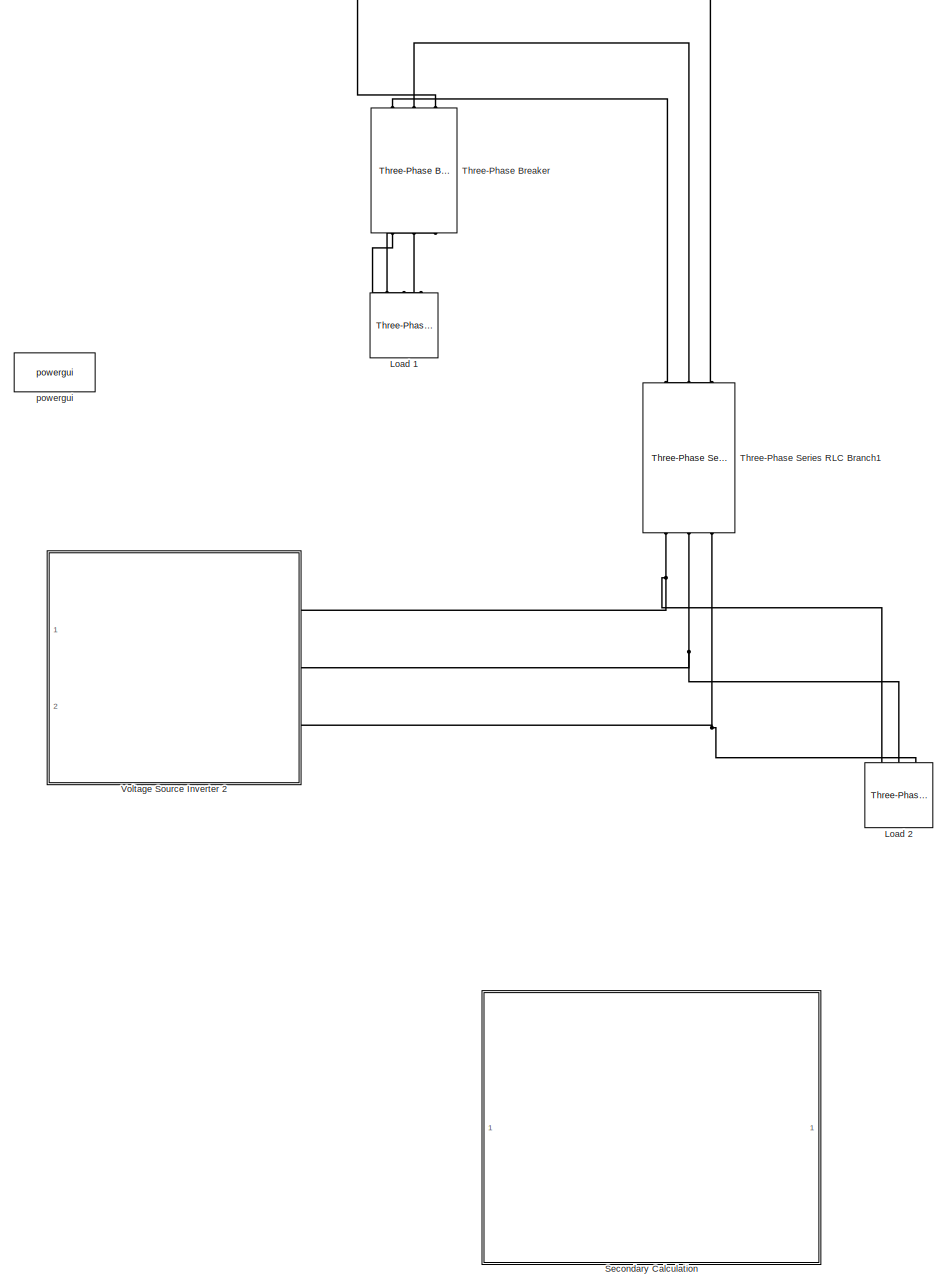
[diagram: root canvas - part 1/1, most of the canvas]
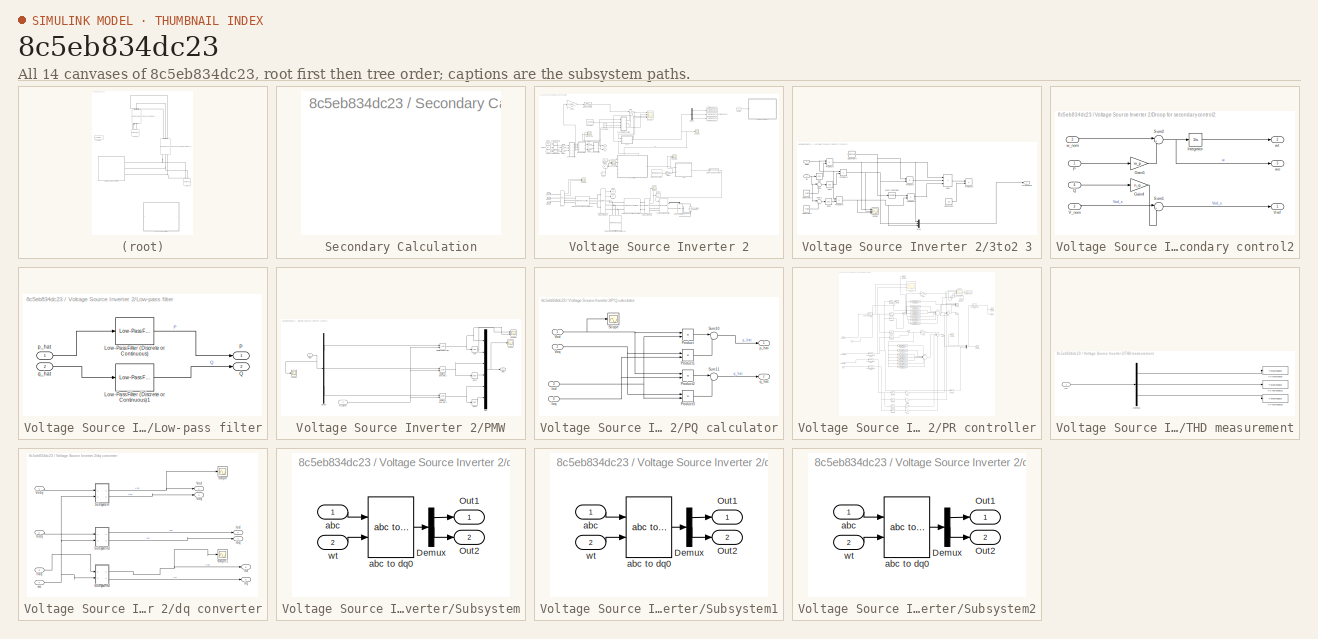
[diagram: thumbnail index - all 14 canvases of the model, root first then tree order]
MODEL slx_8c5eb834dc23
KIND model
CONFIG AbsTol = auto
CONFIG EnableMultiTasking = off
CONFIG FixedStep = auto
CONFIG MaxStep = auto
CONFIG MinStep = auto
CONFIG RelTol = 1e-3
CONFIG SampleTimeConstraint = Unconstrained
CONFIG SolverName = VariableStepAuto
CONFIG StartTime = 0.0
CONFIG StopTime = 0.75
BLOCK [Reference] Load 1  REF=powerlib/Elements/Three-Phase Series RLC Load
  AttributesFormatString = \n
  NameLocation = right
  Ports = [0, 0, 0, 0, 0, 3]
  SourceBlock = powerlib/Elements/Three-Phase Series RLC Load
  SourceType = Three-Phase Series RLC Load
BLOCK [Reference] Load 2  REF=powerlib/Elements/Three-Phase Series RLC Load
  AttributesFormatString = \n
  NameLocation = right
  Ports = [0, 0, 0, 0, 0, 3]
  SourceBlock = powerlib/Elements/Three-Phase Series RLC Load
  SourceType = Three-Phase Series RLC Load
BLOCK [SubSystem] Secondary Calculation
  Ports = []
BLOCK [Reference] Three-Phase Breaker  REF=powerlib/Elements/Three-Phase Breaker
  NameLocation = left
  Ports = [0, 0, 0, 0, 0, 3, 3]
  SourceBlock = powerlib/Elements/Three-Phase Breaker
  SourceType = Three-Phase Breaker
BLOCK [Reference] Three-Phase Series RLC Branch1  REF=powerlib/Elements/Three-Phase Series RLC Branch
  AttributesFormatString = \n
  NameLocation = left
  Ports = [0, 0, 0, 0, 0, 3, 3]
  SourceBlock = powerlib/Elements/Three-Phase Series RLC Branch
  SourceType = Three-Phase Series RLC Branch
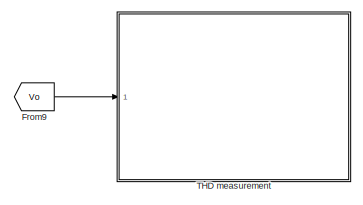
[diagram: Voltage Source Inverter 2 - part 1/3, top right region]
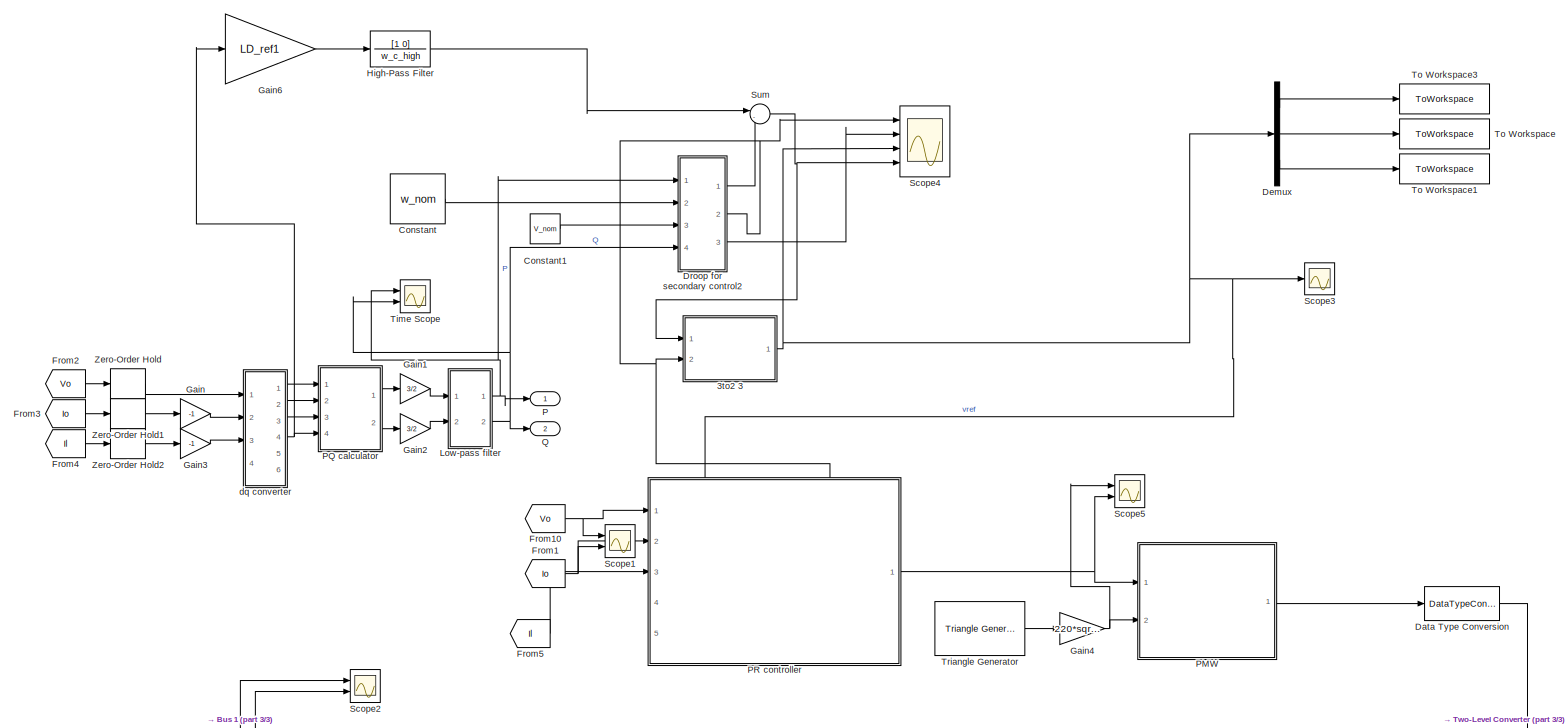
[diagram: Voltage Source Inverter 2 - part 2/3, full width, middle band]
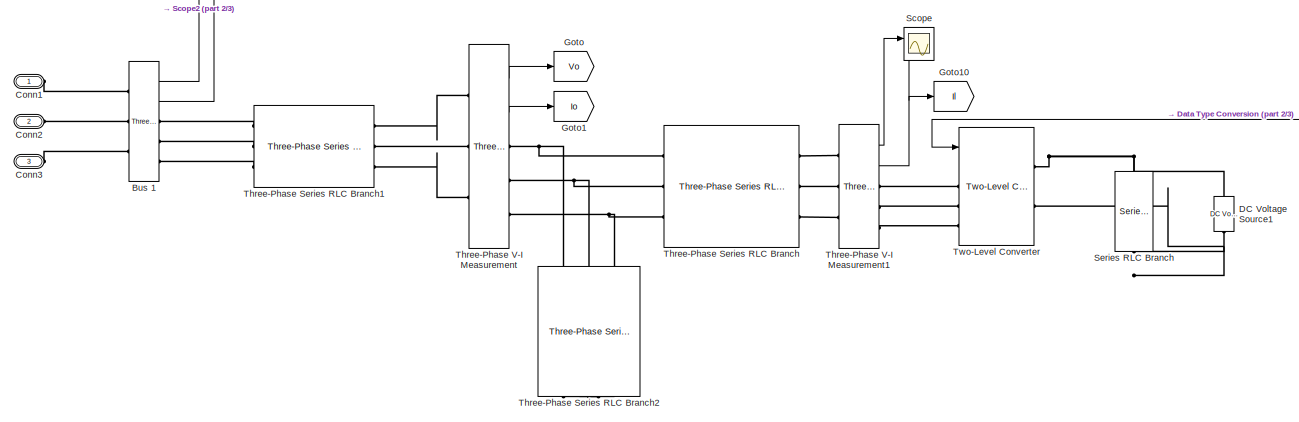
[diagram: Voltage Source Inverter 2 - part 3/3, bottom center region]
BLOCK [SubSystem] Voltage Source Inverter 2
  NameLocation = top
  Ports = [0, 2, 0, 0, 0, 3]
BLOCK [SubSystem] Voltage Source Inverter 2/3to2 3
  Ports = [2, 1]
BLOCK [Sum] Voltage Source Inverter 2/3to2 3/Add1
  IconShape = rectangular
  Inputs = +++
  Ports = [3, 1]
BLOCK [Constant] Voltage Source Inverter 2/3to2 3/Constant2
  Value = 2*pi/3
BLOCK [Constant] Voltage Source Inverter 2/3to2 3/Constant3
  Value = 4*pi/3
BLOCK [Constant] Voltage Source Inverter 2/3to2 3/Constant4
  Value = exp(i*2*pi/3)
BLOCK [Constant] Voltage Source Inverter 2/3to2 3/Constant5
  Value = 2/3
BLOCK [Trigonometry] Voltage Source Inverter 2/3to2 3/Cos
  Operator = cos
  Ports = [1, 1]
BLOCK [Trigonometry] Voltage Source Inverter 2/3to2 3/Cos1
  Operator = cos
  Ports = [1, 1]
BLOCK [Trigonometry] Voltage Source Inverter 2/3to2 3/Cos2
  Operator = cos
  Ports = [1, 1]
BLOCK [Math] Voltage Source Inverter 2/3to2 3/Math Function1
  Operator = square
  Ports = [1, 1]
  SignedPower = on
BLOCK [Mux] Voltage Source Inverter 2/3to2 3/Mux
  DisplayOption = bar
  Inputs = 3
  Ports = [3, 1]
BLOCK [Product] Voltage Source Inverter 2/3to2 3/Product3
  Ports = [2, 1]
  RndMeth = Zero
BLOCK [Product] Voltage Source Inverter 2/3to2 3/Product4
  Ports = [2, 1]
  RndMeth = Zero
BLOCK [Product] Voltage Source Inverter 2/3to2 3/Product5
  Ports = [2, 1]
  RndMeth = Zero
BLOCK [Product] Voltage Source Inverter 2/3to2 3/Product6
  Ports = [2, 1]
  RndMeth = Zero
BLOCK [Product] Voltage Source Inverter 2/3to2 3/Product7
  Ports = [2, 1]
  RndMeth = Zero
BLOCK [Product] Voltage Source Inverter 2/3to2 3/Product8
  Ports = [2, 1]
  RndMeth = Zero
BLOCK [Scope] Voltage Source Inverter 2/3to2 3/Scope
  Floating = off
  NumInputPorts = 3
  Ports = [3]
  ScopeSpecificationString = Simulink.scopes.TimeScopeBlockCfg('CurrentConfiguration', extmgr.ConfigurationSet(extmgr.Configuration('Core','General UI',true),extmgr.Configuration('Core','Source UI',true),extmgr.Configuration('Sources','WiredSimulink',true,'DataLoggingVariableName','ScopeData4'),extmgr.Configuration('Visuals','Time Domain',true,'SerializedDisplays',{struct('MinYLimReal','-388.90831','MaxYLimReal','388.90868','...<+2070ch>
BLOCK [Sum] Voltage Source Inverter 2/3to2 3/Sum
  Inputs = |++
  Ports = [2, 1]
BLOCK [Sum] Voltage Source Inverter 2/3to2 3/Sum1
  Inputs = |++
  Ports = [2, 1]
BLOCK [Inport] Voltage Source Inverter 2/3to2 3/single 
BLOCK [Outport] Voltage Source Inverter 2/3to2 3/threePhase
  VectorParamsAs1DForOutWhenUnconnected = off
BLOCK [Inport] Voltage Source Inverter 2/3to2 3/wt 
  Port = 2
BLOCK [Reference] Voltage Source Inverter 2/Bus 1  REF=powerlib/Measurements/Three-Phase V-I Measurement
  Ports = [0, 2, 0, 0, 0, 3, 3]
  SourceBlock = powerlib/Measurements/Three-Phase V-I Measurement
  SourceType = Three-Phase VI Measurement
BLOCK [PMIOPort] Voltage Source Inverter 2/Conn1
  Side = Left
BLOCK [PMIOPort] Voltage Source Inverter 2/Conn2
  Port = 2
  Side = Left
BLOCK [PMIOPort] Voltage Source Inverter 2/Conn3
  Port = 3
  Side = Left
BLOCK [Constant] Voltage Source Inverter 2/Constant
  Value = w_nom
BLOCK [Constant] Voltage Source Inverter 2/Constant1
  Value = V_nom
BLOCK [Reference] Voltage Source Inverter 2/DC Voltage Source1  REF=powerlib/Electrical Sources/DC Voltage Source
  NameLocation = right
  Ports = [0, 0, 0, 0, 0, 1, 1]
  SourceBlock = powerlib/Electrical Sources/DC Voltage Source
  SourceType = DC Voltage Source
BLOCK [DataTypeConversion] Voltage Source Inverter 2/Data Type Conversion
  OutDataTypeStr = int8
  RndMeth = Floor
  SaturateOnIntegerOverflow = off
BLOCK [Demux] Voltage Source Inverter 2/Demux
  Outputs = 3
  Ports = [1, 3]
BLOCK [SubSystem] Voltage Source Inverter 2/Droop for secondary control2
  Ports = [4, 3]
BLOCK [Gain] Voltage Source Inverter 2/Droop for secondary control2/Gain4
  Gain = n_q
BLOCK [Gain] Voltage Source Inverter 2/Droop for secondary control2/Gain5
  Gain = m_p
BLOCK [Integrator] Voltage Source Inverter 2/Droop for secondary control2/Integrator
  Ports = [1, 1]
  WrapState = on
  WrappedStateLowerValue = 0
  WrappedStateUpperValue = 2*pi
BLOCK [Inport] Voltage Source Inverter 2/Droop for secondary control2/P
BLOCK [Inport] Voltage Source Inverter 2/Droop for secondary control2/Q
  Port = 4
BLOCK [Sum] Voltage Source Inverter 2/Droop for secondary control2/Sum1
  Inputs = |+-
  Ports = [2, 1]
BLOCK [Sum] Voltage Source Inverter 2/Droop for secondary control2/Sum2
  Inputs = |+-
  Ports = [2, 1]
BLOCK [Inport] Voltage Source Inverter 2/Droop for secondary control2/V_nom
  Port = 3
BLOCK [Outport] Voltage Source Inverter 2/Droop for secondary control2/Vref
BLOCK [Inport] Voltage Source Inverter 2/Droop for secondary control2/w_nom
  Port = 2
BLOCK [Outport] Voltage Source Inverter 2/Droop for secondary control2/wo
  Port = 3
BLOCK [Outport] Voltage Source Inverter 2/Droop for secondary control2/wt
  Port = 2
BLOCK [From] Voltage Source Inverter 2/From1
  GotoTag = Io
BLOCK [From] Voltage Source Inverter 2/From10
  GotoTag = Vo
BLOCK [From] Voltage Source Inverter 2/From2
  GotoTag = Vo
BLOCK [From] Voltage Source Inverter 2/From3
  GotoTag = Io
BLOCK [From] Voltage Source Inverter 2/From4
  GotoTag = Il
BLOCK [From] Voltage Source Inverter 2/From5
  GotoTag = Il
BLOCK [From] Voltage Source Inverter 2/From9
  GotoTag = Vo
BLOCK [Gain] Voltage Source Inverter 2/Gain
  Gain = -1
BLOCK [Gain] Voltage Source Inverter 2/Gain1
  Gain = 3/2
BLOCK [Gain] Voltage Source Inverter 2/Gain2
  Gain = 3/2
BLOCK [Gain] Voltage Source Inverter 2/Gain3
  Gain = -1
BLOCK [Gain] Voltage Source Inverter 2/Gain4
  Gain = 220*sqrt(2)
BLOCK [Gain] Voltage Source Inverter 2/Gain6
  Gain = LD_ref1
BLOCK [Goto] Voltage Source Inverter 2/Goto
  GotoTag = Vo
BLOCK [Goto] Voltage Source Inverter 2/Goto1
  GotoTag = Io
BLOCK [Goto] Voltage Source Inverter 2/Goto10
  GotoTag = Il
BLOCK [TransferFcn] Voltage Source Inverter 2/High-Pass Filter
  Denominator = w_c_high
  Numerator = [1 0]
BLOCK [SubSystem] Voltage Source Inverter 2/Low-pass filter
  Ports = [2, 2]
BLOCK [Reference] Voltage Source Inverter 2/Low-pass filter/Low-Pass Filter (Discrete or Continuous)  REF=eeGeneralControl/Low-Pass Filter
(Discrete or Continuous)
  Ports = [1, 1]
  SourceBlock = eeGeneralControl/Low-Pass Filter\n(Discrete or Continuous)
  SourceType = Low-Pass Filter (Discrete or Continuous)
BLOCK [Reference] Voltage Source Inverter 2/Low-pass filter/Low-Pass Filter (Discrete or Continuous)1  REF=eeGeneralControl/Low-Pass Filter
(Discrete or Continuous)
  Ports = [1, 1]
  SourceBlock = eeGeneralControl/Low-Pass Filter\n(Discrete or Continuous)
  SourceType = Low-Pass Filter (Discrete or Continuous)
BLOCK [Outport] Voltage Source Inverter 2/Low-pass filter/P
BLOCK [Outport] Voltage Source Inverter 2/Low-pass filter/Q
  Port = 2
BLOCK [Inport] Voltage Source Inverter 2/Low-pass filter/p_hat
BLOCK [Inport] Voltage Source Inverter 2/Low-pass filter/q_hat
  Port = 2
BLOCK [Outport] Voltage Source Inverter 2/P
BLOCK [SubSystem] Voltage Source Inverter 2/PMW
  Ports = [2, 1]
BLOCK [Demux] Voltage Source Inverter 2/PMW/Demux
  Outputs = 3
  Ports = [1, 3]
BLOCK [Mux] Voltage Source Inverter 2/PMW/Mux
  DisplayOption = bar
  Inputs = 6
  Ports = [6, 1]
BLOCK [Logic] Voltage Source Inverter 2/PMW/NOT
  AllPortsSameDT = off
  Operator = NOT
  OutDataTypeStr = boolean
  Ports = [1, 1]
BLOCK [Logic] Voltage Source Inverter 2/PMW/NOT1
  AllPortsSameDT = off
  Operator = NOT
  OutDataTypeStr = boolean
  Ports = [1, 1]
BLOCK [Logic] Voltage Source Inverter 2/PMW/NOT2
  AllPortsSameDT = off
  Operator = NOT
  OutDataTypeStr = boolean
  Ports = [1, 1]
BLOCK [Outport] Voltage Source Inverter 2/PMW/Out1
BLOCK [Inport] Voltage Source Inverter 2/PMW/REF
BLOCK [RelationalOperator] Voltage Source Inverter 2/PMW/Relational Operator
  InputSameDT = off
  OutDataTypeStr = boolean
  Ports = [2, 1]
  RndMeth = Simplest
BLOCK [RelationalOperator] Voltage Source Inverter 2/PMW/Relational Operator1
  InputSameDT = off
  OutDataTypeStr = boolean
  Ports = [2, 1]
  RndMeth = Simplest
BLOCK [RelationalOperator] Voltage Source Inverter 2/PMW/Relational Operator2
  InputSameDT = off
  OutDataTypeStr = boolean
  Ports = [2, 1]
  RndMeth = Simplest
BLOCK [Scope] Voltage Source Inverter 2/PMW/Scope
  Floating = off
  NumInputPorts = 1
  Ports = [1]
  ScopeSpecificationString = Simulink.scopes.TimeScopeBlockCfg('CurrentConfiguration', extmgr.ConfigurationSet(extmgr.Configuration('Core','General UI',true),extmgr.Configuration('Core','Source UI',true),extmgr.Configuration('Sources','WiredSimulink',true,'DataLoggingVariableName','ScopeData6'),extmgr.Configuration('Visuals','Time Domain',true,'SerializedDisplays',{struct('MinYLimReal','-0.125','MaxYLimReal','1.125','YLabelRe...<+1941ch>
BLOCK [Scope] Voltage Source Inverter 2/PMW/Scope1
  Floating = off
  NumInputPorts = 1
  Ports = [1]
  ScopeSpecificationString = Simulink.scopes.TimeScopeBlockCfg('CurrentConfiguration', extmgr.ConfigurationSet(extmgr.Configuration('Core','General UI',true),extmgr.Configuration('Core','Source UI',true),extmgr.Configuration('Sources','WiredSimulink',true,'DataLoggingVariableName','ScopeData7'),extmgr.Configuration('Visuals','Time Domain',true,'SerializedDisplays',{struct('MinYLimReal','-7865.84866','MaxYLimReal','7880.10806'...<+1450ch>
BLOCK [Scope] Voltage Source Inverter 2/PMW/Scope2
  Floating = off
  NumInputPorts = 2
  Ports = [2]
  ScopeSpecificationString = Simulink.scopes.TimeScopeBlockCfg('CurrentConfiguration', extmgr.ConfigurationSet(extmgr.Configuration('Core','General UI',true),extmgr.Configuration('Core','Source UI',true),extmgr.Configuration('Sources','WiredSimulink',true,'DataLoggingVariableName','ScopeData8'),extmgr.Configuration('Visuals','Time Domain',true,'SerializedDisplays',{struct('MinYLimReal','-0.03559','MaxYLimReal','1.0376','YLabe...<+1470ch>
BLOCK [Inport] Voltage Source Inverter 2/PMW/Tri_signal
  Port = 2
BLOCK [SubSystem] Voltage Source Inverter 2/PQ calculator
  Ports = [4, 2]
BLOCK [Inport] Voltage Source Inverter 2/PQ calculator/Iod
  Port = 3
BLOCK [Inport] Voltage Source Inverter 2/PQ calculator/Ioq
  Port = 4
BLOCK [Product] Voltage Source Inverter 2/PQ calculator/Product
  Ports = [2, 1]
BLOCK [Product] Voltage Source Inverter 2/PQ calculator/Product1
  Ports = [2, 1]
BLOCK [Product] Voltage Source Inverter 2/PQ calculator/Product2
  Ports = [2, 1]
BLOCK [Product] Voltage Source Inverter 2/PQ calculator/Product3
  Ports = [2, 1]
BLOCK [Scope] Voltage Source Inverter 2/PQ calculator/Scope
  Floating = off
  NumInputPorts = 1
  Ports = [1]
  ScopeSpecificationString = Simulink.scopes.TimeScopeBlockCfg('CurrentConfiguration', extmgr.ConfigurationSet(extmgr.Configuration('Core','General UI',true),extmgr.Configuration('Core','Source UI',true),extmgr.Configuration('Sources','WiredSimulink',true,'DataLoggingVariableName','ScopeData2'),extmgr.Configuration('Visuals','Time Domain',true,'SerializedDisplays',{struct('MinYLimReal','296.70971','MaxYLimReal','308.09113','Y...<+2027ch>
BLOCK [Sum] Voltage Source Inverter 2/PQ calculator/Sum10
  Inputs = |++
  Ports = [2, 1]
BLOCK [Sum] Voltage Source Inverter 2/PQ calculator/Sum11
  Inputs = |+-
  Ports = [2, 1]
BLOCK [Inport] Voltage Source Inverter 2/PQ calculator/Vod
BLOCK [Inport] Voltage Source Inverter 2/PQ calculator/Voq
  Port = 2
BLOCK [Outport] Voltage Source Inverter 2/PQ calculator/p_hat
BLOCK [Outport] Voltage Source Inverter 2/PQ calculator/q_hat
  Port = 2
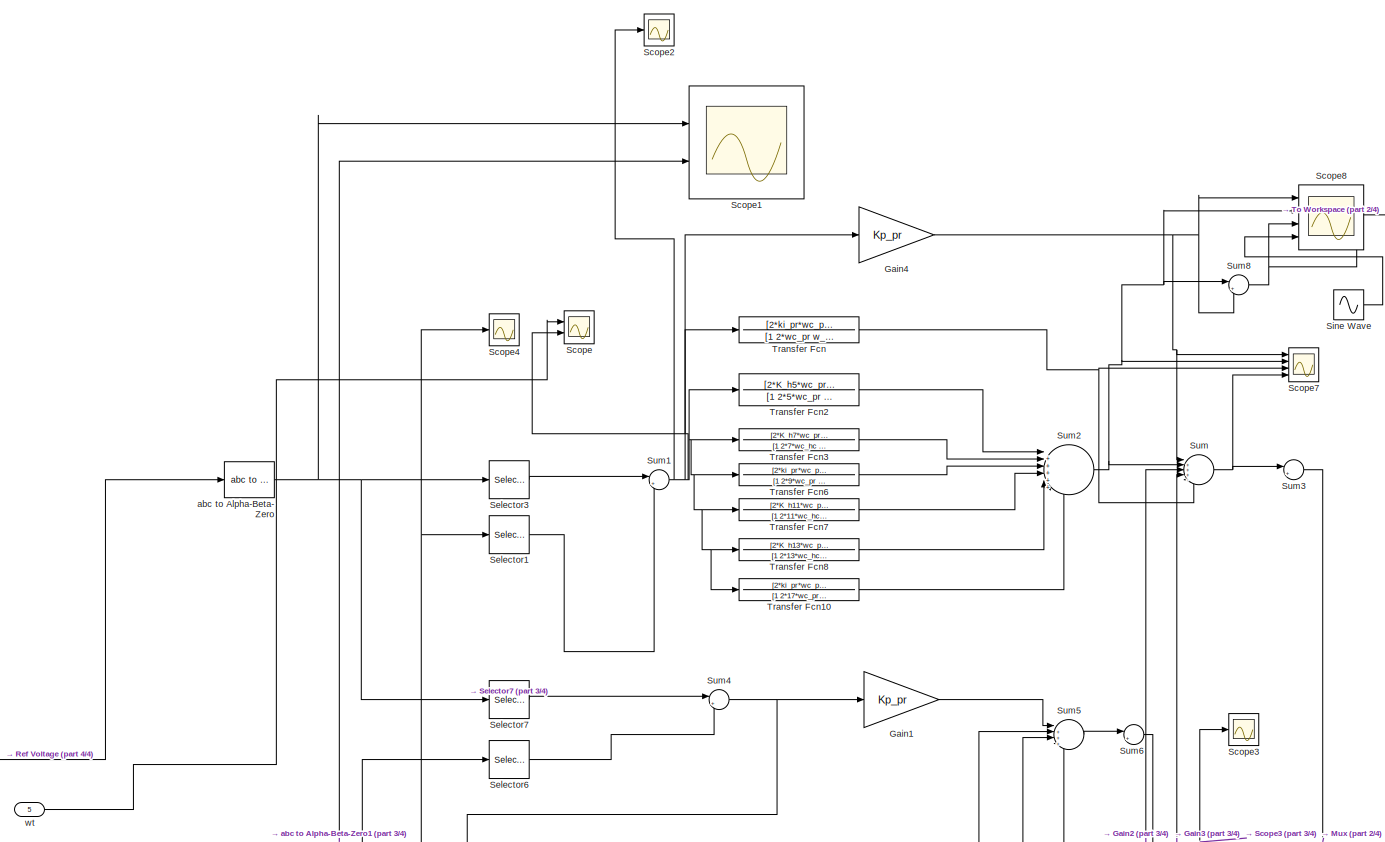
[diagram: Voltage Source Inverter 2/PR controller - part 1/4, full width, top band]
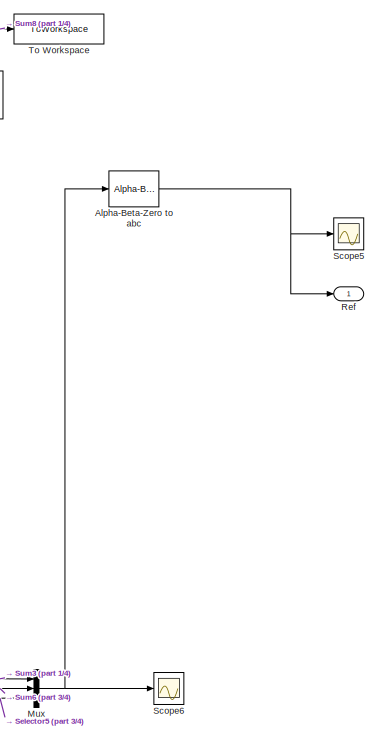
[diagram: Voltage Source Inverter 2/PR controller - part 2/4, middle right region]
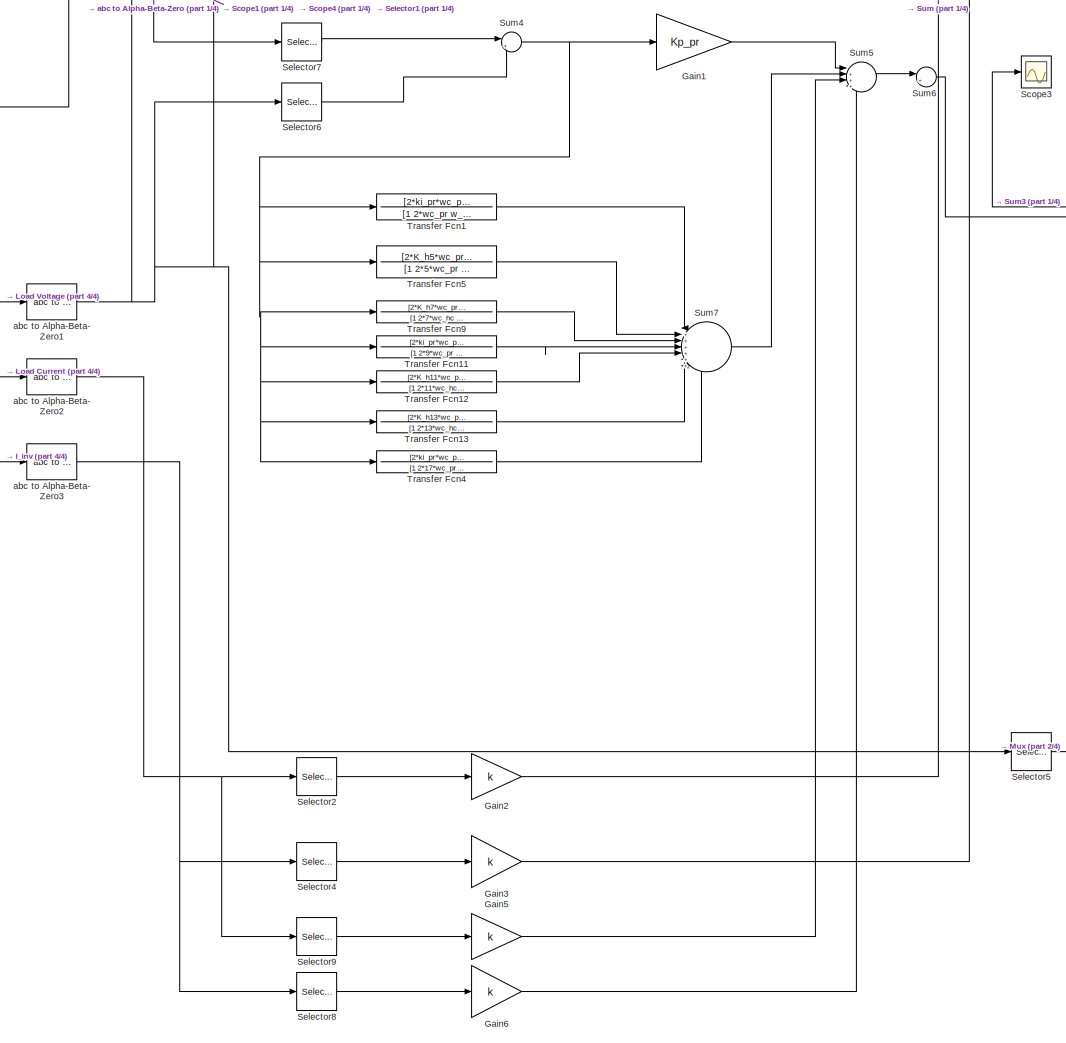
[diagram: Voltage Source Inverter 2/PR controller - part 3/4, bottom center region]
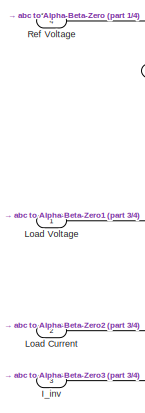
[diagram: Voltage Source Inverter 2/PR controller - part 4/4, middle left region]
BLOCK [SubSystem] Voltage Source Inverter 2/PR controller
  PortSchema = {"entries":[{"content":{"sides":[{"content":{"connectorIds":["In1","In2","In3"]},"type":"ConnectorPlacement.EquallySpacedRectSide","uuid":"7320bc60-546b-444c-8acd-b3f08639d81a"},{"content":{"connectorIds":["Out1"],"side":"RIGHT"},"type":"ConnectorPlacement.EquallySpacedRectSide","uuid":"69cfd51f-d98e-4566-bb44-68be2b580a1e"},{"content":{"connectorIds":["In4","In5"],"side":"TOP"},"type":"ConnectorP...<+263ch>
  Ports = [5, 1]
BLOCK [Reference] Voltage Source Inverter 2/PR controller/Alpha-Beta-Zero to abc  REF=powerlib_meascontrol/Transformations/Alpha-Beta-Zero to abc
  Ports = [1, 1]
  SourceBlock = powerlib_meascontrol/Transformations/Alpha-Beta-Zero to abc
  SourceType = Alpha-Beta-Zero to abc Transformation
BLOCK [Gain] Voltage Source Inverter 2/PR controller/Gain1
  Gain = Kp_pr
BLOCK [Gain] Voltage Source Inverter 2/PR controller/Gain2
  Gain = k
BLOCK [Gain] Voltage Source Inverter 2/PR controller/Gain3
  Gain = k
BLOCK [Gain] Voltage Source Inverter 2/PR controller/Gain4
  Gain = Kp_pr
BLOCK [Gain] Voltage Source Inverter 2/PR controller/Gain5
  Gain = k
BLOCK [Gain] Voltage Source Inverter 2/PR controller/Gain6
  Gain = k
BLOCK [Inport] Voltage Source Inverter 2/PR controller/I_inv
  Port = 3
BLOCK [Inport] Voltage Source Inverter 2/PR controller/Load Current
  Port = 2
BLOCK [Inport] Voltage Source Inverter 2/PR controller/Load Voltage
BLOCK [Mux] Voltage Source Inverter 2/PR controller/Mux
  DisplayOption = bar
  Inputs = 3
  Ports = [3, 1]
BLOCK [Outport] Voltage Source Inverter 2/PR controller/Ref
BLOCK [Inport] Voltage Source Inverter 2/PR controller/Ref Voltage
  Port = 4
BLOCK [Scope] Voltage Source Inverter 2/PR controller/Scope
  Floating = off
  NumInputPorts = 2
  Ports = [2]
  ScopeSpecificationString = Simulink.scopes.TimeScopeBlockCfg('CurrentConfiguration', extmgr.ConfigurationSet(extmgr.Configuration('Core','General UI',true),extmgr.Configuration('Core','Source UI',true),extmgr.Configuration('Sources','WiredSimulink',true,'DataLoggingVariableName','ScopeData4'),extmgr.Configuration('Visuals','Time Domain',true,'SerializedDisplays',{struct('MinYLimReal','-0.7854','MaxYLimReal','7.06858','YLabe...<+2103ch>
BLOCK [Scope] Voltage Source Inverter 2/PR controller/Scope1
  Floating = off
  NumInputPorts = 2
  Ports = [2]
  ScopeSpecificationString = Simulink.scopes.TimeScopeBlockCfg('CurrentConfiguration', extmgr.ConfigurationSet(extmgr.Configuration('Core','General UI',true),extmgr.Configuration('Core','Source UI',true),extmgr.Configuration('Sources','WiredSimulink',true,'DataLoggingVariableName','ScopeData1'),extmgr.Configuration('Visuals','Time Domain',true,'SerializedDisplays',{struct('MinYLimReal','-399.35401','MaxYLimReal','398.24042','...<+1662ch>
BLOCK [Scope] Voltage Source Inverter 2/PR controller/Scope2
  Floating = off
  NumInputPorts = 1
  Ports = [1]
  ScopeSpecificationString = Simulink.scopes.TimeScopeBlockCfg('CurrentConfiguration', extmgr.ConfigurationSet(extmgr.Configuration('Core','General UI',true),extmgr.Configuration('Core','Source UI',true),extmgr.Configuration('Sources','WiredSimulink',true,'DataLoggingVariableName','ScopeData1','DataLoggingSaveFormat','Array','DataLoggingLimitDataPoints',true,'DataLoggingDecimation','1'),extmgr.Configuration('Visuals','Time Do...<+1696ch>
BLOCK [Scope] Voltage Source Inverter 2/PR controller/Scope3
  Floating = off
  NumInputPorts = 1
  Ports = [1]
  ScopeSpecificationString = Simulink.scopes.TimeScopeBlockCfg('CurrentConfiguration', extmgr.ConfigurationSet(extmgr.Configuration('Core','General UI',true),extmgr.Configuration('Core','Source UI',true),extmgr.Configuration('Sources','WiredSimulink',true,'DataLoggingVariableName','ScopeData1'),extmgr.Configuration('Visuals','Time Domain',true,'SerializedDisplays',{struct('MinYLimReal','-20335.68646','MaxYLimReal','19295.5841...<+1607ch>
BLOCK [Scope] Voltage Source Inverter 2/PR controller/Scope4
  Floating = off
  NumInputPorts = 1
  Ports = [1]
  ScopeSpecificationString = Simulink.scopes.TimeScopeBlockCfg('CurrentConfiguration', extmgr.ConfigurationSet(extmgr.Configuration('Core','General UI',true),extmgr.Configuration('Core','Source UI',true),extmgr.Configuration('Sources','WiredSimulink',true,'DataLoggingVariableName','ScopeData1'),extmgr.Configuration('Visuals','Time Domain',true,'SerializedDisplays',{struct('MinYLimReal','-311.0771','MaxYLimReal','317.6701','YL...<+1543ch>
BLOCK [Scope] Voltage Source Inverter 2/PR controller/Scope5
  Floating = off
  NumInputPorts = 1
  Ports = [1]
  ScopeSpecificationString = Simulink.scopes.TimeScopeBlockCfg('CurrentConfiguration', extmgr.ConfigurationSet(extmgr.Configuration('Core','General UI',true),extmgr.Configuration('Core','Source UI',true),extmgr.Configuration('Sources','WiredSimulink',true,'DataLoggingVariableName','ScopeData2'),extmgr.Configuration('Visuals','Time Domain',true,'SerializedDisplays',{struct('MinYLimReal','-415.1702','MaxYLimReal','376.51594','Y...<+1542ch>
BLOCK [Scope] Voltage Source Inverter 2/PR controller/Scope6
  Floating = off
  NumInputPorts = 1
  Ports = [1]
  ScopeSpecificationString = Simulink.scopes.TimeScopeBlockCfg('CurrentConfiguration', extmgr.ConfigurationSet(extmgr.Configuration('Core','General UI',true),extmgr.Configuration('Core','Source UI',true),extmgr.Configuration('Sources','WiredSimulink',true,'DataLoggingVariableName','ScopeData3'),extmgr.Configuration('Visuals','Time Domain',true,'SerializedDisplays',{struct('MinYLimReal','-449.65827','MaxYLimReal','449.67998','...<+1491ch>
BLOCK [Scope] Voltage Source Inverter 2/PR controller/Scope7
  Floating = off
  NumInputPorts = 4
  Ports = [4]
  ScopeSpecificationString = Simulink.scopes.TimeScopeBlockCfg('CurrentConfiguration', extmgr.ConfigurationSet(extmgr.Configuration('Core','General UI',true),extmgr.Configuration('Core','Source UI',true),extmgr.Configuration('Sources','WiredSimulink',true,'DataLoggingVariableName','ScopeData1'),extmgr.Configuration('Visuals','Time Domain',true,'SerializedDisplays',{struct('MinYLimReal','-458.10817','MaxYLimReal','458.10105','...<+1499ch>
BLOCK [Scope] Voltage Source Inverter 2/PR controller/Scope8
  Floating = off
  NumInputPorts = 4
  Ports = [4]
  ScopeSpecificationString = Simulink.scopes.TimeScopeBlockCfg('CurrentConfiguration', extmgr.ConfigurationSet(extmgr.Configuration('Core','General UI',true),extmgr.Configuration('Core','Source UI',true),extmgr.Configuration('Sources','WiredSimulink',true,'DataLoggingVariableName','ScopeData2'),extmgr.Configuration('Visuals','Time Domain',true,'SerializedDisplays',{struct('MinYLimReal','-17.62624','MaxYLimReal','19.42709','YL...<+1631ch>
BLOCK [Selector] Voltage Source Inverter 2/PR controller/Selector1
  IndexOptions = Index vector (dialog)
  Indices = 1
  InputPortWidth = 3
  OutputSizes = 1
  Ports = [1, 1]
BLOCK [Selector] Voltage Source Inverter 2/PR controller/Selector2
  IndexOptions = Index vector (dialog)
  Indices = 1
  InputPortWidth = 3
  OutputSizes = 1
  Ports = [1, 1]
BLOCK [Selector] Voltage Source Inverter 2/PR controller/Selector3
  IndexOptions = Index vector (dialog)
  Indices = 1
  InputPortWidth = 3
  OutputSizes = 1
  Ports = [1, 1]
BLOCK [Selector] Voltage Source Inverter 2/PR controller/Selector4
  IndexOptions = Index vector (dialog)
  Indices = 1
  InputPortWidth = 3
  OutputSizes = 1
  Ports = [1, 1]
BLOCK [Selector] Voltage Source Inverter 2/PR controller/Selector5
  IndexOptions = Index vector (dialog)
  Indices = [ 3]
  InputPortWidth = 3
  OutputSizes = 1
  Ports = [1, 1]
BLOCK [Selector] Voltage Source Inverter 2/PR controller/Selector6
  IndexOptions = Index vector (dialog)
  Indices = 2
  InputPortWidth = 3
  OutputSizes = 1
  Ports = [1, 1]
BLOCK [Selector] Voltage Source Inverter 2/PR controller/Selector7
  IndexOptions = Index vector (dialog)
  Indices = 2
  InputPortWidth = 3
  OutputSizes = 1
  Ports = [1, 1]
BLOCK [Selector] Voltage Source Inverter 2/PR controller/Selector8
  IndexOptions = Index vector (dialog)
  Indices = 2
  InputPortWidth = 3
  OutputSizes = 1
  Ports = [1, 1]
BLOCK [Selector] Voltage Source Inverter 2/PR controller/Selector9
  IndexOptions = Index vector (dialog)
  Indices = 2
  InputPortWidth = 3
  OutputSizes = 1
  Ports = [1, 1]
BLOCK [Sin] Voltage Source Inverter 2/PR controller/Sine Wave
  Amplitude = 3
  Frequency = 2*pi*f
  Phase = -2*pi/3+pi
  Ports = [0, 1]
  SampleTime = 0
BLOCK [Sum] Voltage Source Inverter 2/PR controller/Sum
  Inputs = |+++-+
  Ports = [5, 1]
BLOCK [Sum] Voltage Source Inverter 2/PR controller/Sum1
  Inputs = |+-
  Ports = [2, 1]
BLOCK [Sum] Voltage Source Inverter 2/PR controller/Sum2
  Inputs = |++++++
  Ports = [6, 1]
BLOCK [Sum] Voltage Source Inverter 2/PR controller/Sum3
  Inputs = |++
  Ports = [2, 1]
BLOCK [Sum] Voltage Source Inverter 2/PR controller/Sum4
  Inputs = |+-
  Ports = [2, 1]
BLOCK [Sum] Voltage Source Inverter 2/PR controller/Sum5
  Inputs = |+++-
  Ports = [4, 1]
BLOCK [Sum] Voltage Source Inverter 2/PR controller/Sum6
  Inputs = |++
  Ports = [2, 1]
BLOCK [Sum] Voltage Source Inverter 2/PR controller/Sum7
  Inputs = |+++++++
  Ports = [7, 1]
BLOCK [Sum] Voltage Source Inverter 2/PR controller/Sum8
  Inputs = |++
  Ports = [2, 1]
BLOCK [ToWorkspace] Voltage Source Inverter 2/PR controller/To Workspace
  FixptAsFi = on
  MaxDataPoints = inf
  Ports = [1]
  SampleTime = -1
  SaveFormat = Structure With Time
  VariableName = eror
BLOCK [TransferFcn] Voltage Source Inverter 2/PR controller/Transfer Fcn
  Denominator = [1 2*wc_pr w_nom*w_nom]
  Numerator = [2*ki_pr*wc_pr 0]
BLOCK [TransferFcn] Voltage Source Inverter 2/PR controller/Transfer Fcn1
  Denominator = [1 2*wc_pr w_nom*w_nom]
  Numerator = [2*ki_pr*wc_pr 0]
BLOCK [TransferFcn] Voltage Source Inverter 2/PR controller/Transfer Fcn10
  Commented = on
  Denominator = [1 2*17*wc_pr w_nom*w_nom*17*17]
  Numerator = [2*ki_pr*wc_pr 0]
BLOCK [TransferFcn] Voltage Source Inverter 2/PR controller/Transfer Fcn11
  Commented = on
  Denominator = [1 2*9*wc_pr w_nom*w_nom*9*9]
  Numerator = [2*ki_pr*wc_pr 0]
BLOCK [TransferFcn] Voltage Source Inverter 2/PR controller/Transfer Fcn12
  Denominator = [1 2*11*wc_hc w_nom*w_nom*11*11]
  Numerator = [2*K_h11*wc_pr 0]
BLOCK [TransferFcn] Voltage Source Inverter 2/PR controller/Transfer Fcn13
  Denominator = [1 2*13*wc_hc w_nom*w_nom*13*13]
  Numerator = [2*K_h13*wc_pr 0]
BLOCK [TransferFcn] Voltage Source Inverter 2/PR controller/Transfer Fcn2
  Denominator = [1 2*5*wc_pr w_nom*w_nom*5*5]
  Numerator = [2*K_h5*wc_pr 0]
BLOCK [TransferFcn] Voltage Source Inverter 2/PR controller/Transfer Fcn3
  Denominator = [1 2*7*wc_hc w_nom*w_nom*7*7]
  Numerator = [2*K_h7*wc_pr 0]
BLOCK [TransferFcn] Voltage Source Inverter 2/PR controller/Transfer Fcn4
  Commented = on
  Denominator = [1 2*17*wc_pr w_nom*w_nom*17*17]
  Numerator = [2*ki_pr*wc_pr 0]
BLOCK [TransferFcn] Voltage Source Inverter 2/PR controller/Transfer Fcn5
  Denominator = [1 2*5*wc_pr w_nom*w_nom*5*5]
  Numerator = [2*K_h5*wc_pr 0]
BLOCK [TransferFcn] Voltage Source Inverter 2/PR controller/Transfer Fcn6
  Commented = on
  Denominator = [1 2*9*wc_pr w_nom*w_nom*9*9]
  Numerator = [2*ki_pr*wc_pr 0]
BLOCK [TransferFcn] Voltage Source Inverter 2/PR controller/Transfer Fcn7
  Denominator = [1 2*11*wc_hc w_nom*w_nom*11*11]
  Numerator = [2*K_h11*wc_pr 0]
BLOCK [TransferFcn] Voltage Source Inverter 2/PR controller/Transfer Fcn8
  Denominator = [1 2*13*wc_hc w_nom*w_nom*13*13]
  Numerator = [2*K_h13*wc_pr 0]
BLOCK [TransferFcn] Voltage Source Inverter 2/PR controller/Transfer Fcn9
  Denominator = [1 2*7*wc_hc w_nom*w_nom*7*7]
  Numerator = [2*K_h7*wc_pr 0]
BLOCK [Reference] Voltage Source Inverter 2/PR controller/abc to Alpha-Beta-Zero  REF=powerlib_meascontrol/Transformations/abc to Alpha-Beta-Zero
  Ports = [1, 1]
  SourceBlock = powerlib_meascontrol/Transformations/abc to Alpha-Beta-Zero
  SourceType = abc to Alpha-Beta-Zero Transformation
BLOCK [Reference] Voltage Source Inverter 2/PR controller/abc to Alpha-Beta-Zero1  REF=powerlib_meascontrol/Transformations/abc to Alpha-Beta-Zero
  Ports = [1, 1]
  SourceBlock = powerlib_meascontrol/Transformations/abc to Alpha-Beta-Zero
  SourceType = abc to Alpha-Beta-Zero Transformation
BLOCK [Reference] Voltage Source Inverter 2/PR controller/abc to Alpha-Beta-Zero2  REF=powerlib_meascontrol/Transformations/abc to Alpha-Beta-Zero
  Ports = [1, 1]
  SourceBlock = powerlib_meascontrol/Transformations/abc to Alpha-Beta-Zero
  SourceType = abc to Alpha-Beta-Zero Transformation
BLOCK [Reference] Voltage Source Inverter 2/PR controller/abc to Alpha-Beta-Zero3  REF=powerlib_meascontrol/Transformations/abc to Alpha-Beta-Zero
  Ports = [1, 1]
  SourceBlock = powerlib_meascontrol/Transformations/abc to Alpha-Beta-Zero
  SourceType = abc to Alpha-Beta-Zero Transformation
BLOCK [Inport] Voltage Source Inverter 2/PR controller/wt
  Port = 5
BLOCK [Outport] Voltage Source Inverter 2/Q
  Port = 2
BLOCK [Scope] Voltage Source Inverter 2/Scope
  Floating = off
  NumInputPorts = 2
  Ports = [2]
  ScopeSpecificationString = Simulink.scopes.TimeScopeBlockCfg('CurrentConfiguration', extmgr.ConfigurationSet(extmgr.Configuration('Core','General UI',true),extmgr.Configuration('Core','Source UI',true),extmgr.Configuration('Sources','WiredSimulink',true,'DataLoggingVariableName','ScopeData1'),extmgr.Configuration('Visuals','Time Domain',true,'SerializedDisplays',{struct('MinYLimReal','-500.00048','MaxYLimReal','500.00046','...<+2340ch>
BLOCK [Scope] Voltage Source Inverter 2/Scope1
  Floating = off
  NumInputPorts = 2
  Ports = [2]
  ScopeSpecificationString = Simulink.scopes.TimeScopeBlockCfg('CurrentConfiguration', extmgr.ConfigurationSet(extmgr.Configuration('Core','General UI',true),extmgr.Configuration('Core','Source UI',true),extmgr.Configuration('Sources','WiredSimulink',true,'DataLoggingVariableName','ScopeData9'),extmgr.Configuration('Visuals','Time Domain',true,'SerializedDisplays',{struct('MinYLimReal','-386.58581','MaxYLimReal','386.51092','...<+2227ch>
BLOCK [Scope] Voltage Source Inverter 2/Scope2
  Floating = off
  NumInputPorts = 2
  Ports = [2]
  ScopeSpecificationString = Simulink.scopes.TimeScopeBlockCfg('CurrentConfiguration', extmgr.ConfigurationSet(extmgr.Configuration('Core','General UI',true),extmgr.Configuration('Core','Source UI',true),extmgr.Configuration('Sources','WiredSimulink',true,'DataLoggingVariableName','ScopeData2'),extmgr.Configuration('Visuals','Time Domain',true,'SerializedDisplays',{struct('MinYLimReal','-386.83087','MaxYLimReal','386.67515','...<+2265ch>
BLOCK [Scope] Voltage Source Inverter 2/Scope3
  Floating = off
  NumInputPorts = 1
  Ports = [1]
  ScopeSpecificationString = Simulink.scopes.TimeScopeBlockCfg('CurrentConfiguration', extmgr.ConfigurationSet(extmgr.Configuration('Core','General UI',true),extmgr.Configuration('Core','Source UI',true),extmgr.Configuration('Sources','WiredSimulink',true,'DataLoggingVariableName','ScopeData11'),extmgr.Configuration('Visuals','Time Domain',true,'SerializedDisplays',{struct('MinYLimReal','-388.90873','MaxYLimReal','388.90873',...<+1466ch>
BLOCK [Scope] Voltage Source Inverter 2/Scope4
  Floating = off
  NumInputPorts = 4
  Ports = [4]
  ScopeSpecificationString = Simulink.scopes.TimeScopeBlockCfg('CurrentConfiguration', extmgr.ConfigurationSet(extmgr.Configuration('Core','General UI',true),extmgr.Configuration('Core','Source UI',true),extmgr.Configuration('Sources','WiredSimulink',true,'DataLoggingVariableName','ScopeData2'),extmgr.Configuration('Visuals','Time Domain',true,'SerializedDisplays',{struct('MinYLimReal','-0.7854','MaxYLimReal','7.06857','YLabe...<+3579ch>
BLOCK [Scope] Voltage Source Inverter 2/Scope5
  Floating = off
  NumInputPorts = 2
  Ports = [2]
  ScopeSpecificationString = Simulink.scopes.TimeScopeBlockCfg('CurrentConfiguration', extmgr.ConfigurationSet(extmgr.Configuration('Core','General UI',true),extmgr.Configuration('Core','Source UI',true),extmgr.Configuration('Sources','WiredSimulink',true,'DataLoggingVariableName','ScopeData1'),extmgr.Configuration('Visuals','Time Domain',true,'SerializedDisplays',{struct('MinYLimReal','-445.462','MaxYLimReal','445.51261','YL...<+1502ch>
BLOCK [Reference] Voltage Source Inverter 2/Series RLC Branch  REF=powerlib/Elements/Series RLC Branch
  NameLocation = left
  Ports = [0, 0, 0, 0, 0, 1, 1]
  SourceBlock = powerlib/Elements/Series RLC Branch
  SourceType = Series RLC Branch
BLOCK [Sum] Voltage Source Inverter 2/Sum
  Inputs = |-+
  Ports = [2, 1]
BLOCK [SubSystem] Voltage Source Inverter 2/THD measurement
  Ports = [1]
BLOCK [Demux] Voltage Source Inverter 2/THD measurement/Demux
  Outputs = 3
  Ports = [1, 3]
BLOCK [Inport] Voltage Source Inverter 2/THD measurement/In1
BLOCK [ToWorkspace] Voltage Source Inverter 2/THD measurement/To Workspace
  FixptAsFi = on
  MaxDataPoints = inf
  Ports = [1]
  SampleTime = -1
  SaveFormat = Structure With Time
  VariableName = phase1
BLOCK [ToWorkspace] Voltage Source Inverter 2/THD measurement/To Workspace1
  FixptAsFi = on
  MaxDataPoints = inf
  Ports = [1]
  SampleTime = -1
  SaveFormat = Structure With Time
  VariableName = phase2
BLOCK [ToWorkspace] Voltage Source Inverter 2/THD measurement/To Workspace2
  FixptAsFi = on
  MaxDataPoints = inf
  Ports = [1]
  SampleTime = -1
  SaveFormat = Structure With Time
  VariableName = phase3
BLOCK [Reference] Voltage Source Inverter 2/Three-Phase Series RLC Branch  REF=powerlib/Elements/Three-Phase Series RLC Branch
  AttributesFormatString = \n
  Ports = [0, 0, 0, 0, 0, 3, 3]
  SourceBlock = powerlib/Elements/Three-Phase Series RLC Branch
  SourceType = Three-Phase Series RLC Branch
BLOCK [Reference] Voltage Source Inverter 2/Three-Phase Series RLC Branch1  REF=powerlib/Elements/Three-Phase Series RLC Branch
  AttributesFormatString = \n
  Ports = [0, 0, 0, 0, 0, 3, 3]
  SourceBlock = powerlib/Elements/Three-Phase Series RLC Branch
  SourceType = Three-Phase Series RLC Branch
BLOCK [Reference] Voltage Source Inverter 2/Three-Phase Series RLC Branch2  REF=powerlib/Elements/Three-Phase Series RLC Branch
  AttributesFormatString = \n
  NameLocation = left
  Ports = [0, 0, 0, 0, 0, 3, 3]
  SourceBlock = powerlib/Elements/Three-Phase Series RLC Branch
  SourceType = Three-Phase Series RLC Branch
BLOCK [Reference] Voltage Source Inverter 2/Three-Phase V-I Measurement  REF=powerlib/Measurements/Three-Phase V-I Measurement
  Ports = [0, 2, 0, 0, 0, 3, 3]
  SourceBlock = powerlib/Measurements/Three-Phase V-I Measurement
  SourceType = Three-Phase VI Measurement
BLOCK [Reference] Voltage Source Inverter 2/Three-Phase V-I Measurement1  REF=powerlib/Measurements/Three-Phase V-I Measurement
  Ports = [0, 2, 0, 0, 0, 3, 3]
  SourceBlock = powerlib/Measurements/Three-Phase V-I Measurement
  SourceType = Three-Phase VI Measurement
BLOCK [Scope] Voltage Source Inverter 2/Time Scope
  DefaultConfigurationName = spbscopes.TimeScopeBlockCfg
  Floating = off
  NumInputPorts = 2
  Ports = [2]
  ScopeSpecificationString = spbscopes.TimeScopeBlockCfg('CurrentConfiguration', extmgr.ConfigurationSet(extmgr.Configuration('Core','General UI',true,'FigureColor',[0.156862745098039 0.156862745098039 0.156862745098039]),extmgr.Configuration('Core','Source UI',true),extmgr.Configuration('Sources','WiredSimulink',true,'DataLoggingVariableName','ScopeData1'),extmgr.Configuration('Visuals','Time Domain',true,'DisplayPropertyDef...<+1568ch>
  UserDataPersistent = on
BLOCK [ToWorkspace] Voltage Source Inverter 2/To Workspace
  FixptAsFi = on
  MaxDataPoints = inf
  Ports = [1]
  SampleTime = -1
  SaveFormat = Structure With Time
  VariableName = bref
BLOCK [ToWorkspace] Voltage Source Inverter 2/To Workspace1
  FixptAsFi = on
  MaxDataPoints = inf
  Ports = [1]
  SampleTime = -1
  SaveFormat = Structure With Time
  VariableName = cref
BLOCK [ToWorkspace] Voltage Source Inverter 2/To Workspace3
  FixptAsFi = on
  MaxDataPoints = inf
  Ports = [1]
  SampleTime = -1
  SaveFormat = Structure With Time
  VariableName = aref
BLOCK [Reference] Voltage Source Inverter 2/Triangle Generator  REF=powerlib_meascontrol/Pulse & Signal Generators/Triangle Generator
  Ports = [0, 1]
  SourceBlock = powerlib_meascontrol/Pulse & Signal Generators/Triangle Generator
  SourceType = Triangle Generator
BLOCK [Reference] Voltage Source Inverter 2/Two-Level Converter  REF=powerlib/Power Electronics/Two-Level Converter
  Ports = [2, 0, 0, 0, 0, 3, 2]
  SourceBlock = powerlib/Power Electronics/Two-Level Converter
  SourceType = Two-Level Converter
BLOCK [ZeroOrderHold] Voltage Source Inverter 2/Zero-Order Hold
  SampleTime = modT
BLOCK [ZeroOrderHold] Voltage Source Inverter 2/Zero-Order Hold1
  SampleTime = modT
BLOCK [ZeroOrderHold] Voltage Source Inverter 2/Zero-Order Hold2
  SampleTime = modT
BLOCK [SubSystem] Voltage Source Inverter 2/dq converter
  Ports = [4, 6]
BLOCK [Outport] Voltage Source Inverter 2/dq converter/Ild
  Port = 5
BLOCK [Inport] Voltage Source Inverter 2/dq converter/Ildq
  Port = 3
BLOCK [Outport] Voltage Source Inverter 2/dq converter/Ilq
  Port = 6
BLOCK [Outport] Voltage Source Inverter 2/dq converter/Iod
  Port = 3
BLOCK [Inport] Voltage Source Inverter 2/dq converter/Iodq
  Port = 2
BLOCK [Outport] Voltage Source Inverter 2/dq converter/Ioq
  Port = 4
BLOCK [Scope] Voltage Source Inverter 2/dq converter/Scope
  Floating = off
  NumInputPorts = 1
  Ports = [1]
  ScopeSpecificationString = Simulink.scopes.TimeScopeBlockCfg('CurrentConfiguration', extmgr.ConfigurationSet(extmgr.Configuration('Core','General UI',true),extmgr.Configuration('Core','Source UI',true),extmgr.Configuration('Sources','WiredSimulink',true,'DataLoggingVariableName','ScopeData2'),extmgr.Configuration('Visuals','Time Domain',true,'SerializedDisplays',{struct('MinYLimReal','248.60459','MaxYLimReal','305.18298','Y...<+1454ch>
BLOCK [Scope] Voltage Source Inverter 2/dq converter/Scope1
  Floating = off
  NumInputPorts = 1
  Ports = [1]
  ScopeSpecificationString = Simulink.scopes.TimeScopeBlockCfg('CurrentConfiguration', extmgr.ConfigurationSet(extmgr.Configuration('Core','General UI',true),extmgr.Configuration('Core','Source UI',true),extmgr.Configuration('Sources','WiredSimulink',true,'DataLoggingVariableName','ScopeData1'),extmgr.Configuration('Visuals','Time Domain',true,'SerializedDisplays',{struct('MinYLimReal','-631.77766','MaxYLimReal','635.65441','...<+1451ch>
BLOCK [SubSystem] Voltage Source Inverter 2/dq converter/Subsystem
  Ports = [2, 2]
BLOCK [Demux] Voltage Source Inverter 2/dq converter/Subsystem/Demux
  Outputs = 3
  Ports = [1, 3]
BLOCK [Outport] Voltage Source Inverter 2/dq converter/Subsystem/Out1
BLOCK [Outport] Voltage Source Inverter 2/dq converter/Subsystem/Out2
  Port = 2
BLOCK [Inport] Voltage Source Inverter 2/dq converter/Subsystem/abc
BLOCK [Reference] Voltage Source Inverter 2/dq converter/Subsystem/abc to dq0  REF=powerlib_meascontrol/Transformations/abc to dq0
  Ports = [2, 1]
  SourceBlock = powerlib_meascontrol/Transformations/abc to dq0
  SourceType = abc to dq0 Transformation
BLOCK [Inport] Voltage Source Inverter 2/dq converter/Subsystem/wt
  Port = 2
BLOCK [SubSystem] Voltage Source Inverter 2/dq converter/Subsystem1
  Ports = [2, 2]
BLOCK [Demux] Voltage Source Inverter 2/dq converter/Subsystem1/Demux
  Outputs = 3
  Ports = [1, 3]
BLOCK [Outport] Voltage Source Inverter 2/dq converter/Subsystem1/Out1
BLOCK [Outport] Voltage Source Inverter 2/dq converter/Subsystem1/Out2
  Port = 2
BLOCK [Inport] Voltage Source Inverter 2/dq converter/Subsystem1/abc
BLOCK [Reference] Voltage Source Inverter 2/dq converter/Subsystem1/abc to dq0  REF=powerlib_meascontrol/Transformations/abc to dq0
  Ports = [2, 1]
  SourceBlock = powerlib_meascontrol/Transformations/abc to dq0
  SourceType = abc to dq0 Transformation
BLOCK [Inport] Voltage Source Inverter 2/dq converter/Subsystem1/wt
  Port = 2
BLOCK [SubSystem] Voltage Source Inverter 2/dq converter/Subsystem2
  Ports = [2, 2]
BLOCK [Demux] Voltage Source Inverter 2/dq converter/Subsystem2/Demux
  Outputs = 3
  Ports = [1, 3]
BLOCK [Outport] Voltage Source Inverter 2/dq converter/Subsystem2/Out1
BLOCK [Outport] Voltage Source Inverter 2/dq converter/Subsystem2/Out2
  Port = 2
BLOCK [Inport] Voltage Source Inverter 2/dq converter/Subsystem2/abc
BLOCK [Reference] Voltage Source Inverter 2/dq converter/Subsystem2/abc to dq0  REF=powerlib_meascontrol/Transformations/abc to dq0
  Ports = [2, 1]
  SourceBlock = powerlib_meascontrol/Transformations/abc to dq0
  SourceType = abc to dq0 Transformation
BLOCK [Inport] Voltage Source Inverter 2/dq converter/Subsystem2/wt
  Port = 2
BLOCK [Outport] Voltage Source Inverter 2/dq converter/Vod
BLOCK [Inport] Voltage Source Inverter 2/dq converter/Vodq
BLOCK [Outport] Voltage Source Inverter 2/dq converter/Voq
  Port = 2
BLOCK [Inport] Voltage Source Inverter 2/dq converter/wo
  Port = 4
BLOCK [Reference] powergui  REF=powerlib/powergui
  Ports = []
  Priority = 1
  SourceBlock = powerlib/powergui
  SourceType = PSB option menu block
LINE Voltage Source Inverter 2/3to2 3/Add1:1 -> Voltage Source Inverter 2/3to2 3/Product6:1
LINE Voltage Source Inverter 2/3to2 3/Constant2:1 -> Voltage Source Inverter 2/3to2 3/Sum:2
LINE Voltage Source Inverter 2/3to2 3/Constant3:1 -> Voltage Source Inverter 2/3to2 3/Sum1:2
NET Voltage Source Inverter 2/3to2 3/Constant4:1 -> Voltage Source Inverter 2/3to2 3/Math Function1:1, Voltage Source Inverter 2/3to2 3/Product7:1
LINE Voltage Source Inverter 2/3to2 3/Constant5:1 -> Voltage Source Inverter 2/3to2 3/Product6:2
LINE Voltage Source Inverter 2/3to2 3/Cos1:1 -> Voltage Source Inverter 2/3to2 3/Product4:2
LINE Voltage Source Inverter 2/3to2 3/Cos2:1 -> Voltage Source Inverter 2/3to2 3/Product5:2
LINE Voltage Source Inverter 2/3to2 3/Cos:1 -> Voltage Source Inverter 2/3to2 3/Product3:2
LINE Voltage Source Inverter 2/3to2 3/Math Function1:1 -> Voltage Source Inverter 2/3to2 3/Product8:1
LINE Voltage Source Inverter 2/3to2 3/Mux:1 -> Voltage Source Inverter 2/3to2 3/threePhase:1
NET Voltage Source Inverter 2/3to2 3/Product3:1 -> Voltage Source Inverter 2/3to2 3/Add1:1, Voltage Source Inverter 2/3to2 3/Mux:1, Voltage Source Inverter 2/3to2 3/Scope:1
NET Voltage Source Inverter 2/3to2 3/Product4:1 -> Voltage Source Inverter 2/3to2 3/Mux:2, Voltage Source Inverter 2/3to2 3/Product7:2, Voltage Source Inverter 2/3to2 3/Scope:2
NET Voltage Source Inverter 2/3to2 3/Product5:1 -> Voltage Source Inverter 2/3to2 3/Mux:3, Voltage Source Inverter 2/3to2 3/Product8:2, Voltage Source Inverter 2/3to2 3/Scope:3
LINE Voltage Source Inverter 2/3to2 3/Product7:1 -> Voltage Source Inverter 2/3to2 3/Add1:2
LINE Voltage Source Inverter 2/3to2 3/Product8:1 -> Voltage Source Inverter 2/3to2 3/Add1:3
LINE Voltage Source Inverter 2/3to2 3/Sum1:1 -> Voltage Source Inverter 2/3to2 3/Cos2:1
LINE Voltage Source Inverter 2/3to2 3/Sum:1 -> Voltage Source Inverter 2/3to2 3/Cos1:1
NET Voltage Source Inverter 2/3to2 3/single :1 -> Voltage Source Inverter 2/3to2 3/Product3:1, Voltage Source Inverter 2/3to2 3/Product4:1, Voltage Source Inverter 2/3to2 3/Product5:1
NET Voltage Source Inverter 2/3to2 3/wt :1 -> Voltage Source Inverter 2/3to2 3/Cos:1, Voltage Source Inverter 2/3to2 3/Sum1:1, Voltage Source Inverter 2/3to2 3/Sum:1
NET Voltage Source Inverter 2/3to2 3:1 -> Voltage Source Inverter 2/Demux:1, Voltage Source Inverter 2/PR controller:4, Voltage Source Inverter 2/Scope3:1, Voltage Source Inverter 2/Scope4:3
LINE Voltage Source Inverter 2/Bus 1:1 -> Voltage Source Inverter 2/Scope2:1
LINE Voltage Source Inverter 2/Bus 1:2 -> Voltage Source Inverter 2/Scope2:2
LINE Voltage Source Inverter 2/Constant1:1 -> Voltage Source Inverter 2/Droop for secondary control2:3
LINE Voltage Source Inverter 2/Constant:1 -> Voltage Source Inverter 2/Droop for secondary control2:2
LINE Voltage Source Inverter 2/Data Type Conversion:1 -> Voltage Source Inverter 2/Two-Level Converter:1
LINE Voltage Source Inverter 2/Demux:1 -> Voltage Source Inverter 2/To Workspace3:1
LINE Voltage Source Inverter 2/Demux:2 -> Voltage Source Inverter 2/To Workspace:1
LINE Voltage Source Inverter 2/Demux:3 -> Voltage Source Inverter 2/To Workspace1:1
LINE Voltage Source Inverter 2/Droop for secondary control2/Gain4:1 -> Voltage Source Inverter 2/Droop for secondary control2/Sum1:2
LINE Voltage Source Inverter 2/Droop for secondary control2/Gain5:1 -> Voltage Source Inverter 2/Droop for secondary control2/Sum2:2
LINE Voltage Source Inverter 2/Droop for secondary control2/Integrator:1 -> Voltage Source Inverter 2/Droop for secondary control2/wt:1
LINE Voltage Source Inverter 2/Droop for secondary control2/P:1 -> Voltage Source Inverter 2/Droop for secondary control2/Gain5:1
LINE Voltage Source Inverter 2/Droop for secondary control2/Q:1 -> Voltage Source Inverter 2/Droop for secondary control2/Gain4:1
LINE Voltage Source Inverter 2/Droop for secondary control2/Sum1:1 -> Voltage Source Inverter 2/Droop for secondary control2/Vref:1
NET Voltage Source Inverter 2/Droop for secondary control2/Sum2:1 -> Voltage Source Inverter 2/Droop for secondary control2/Integrator:1, Voltage Source Inverter 2/Droop for secondary control2/wo:1
LINE Voltage Source Inverter 2/Droop for secondary control2/V_nom:1 -> Voltage Source Inverter 2/Droop for secondary control2/Sum1:1
LINE Voltage Source Inverter 2/Droop for secondary control2/w_nom:1 -> Voltage Source Inverter 2/Droop for secondary control2/Sum2:1
LINE Voltage Source Inverter 2/Droop for secondary control2:1 -> Voltage Source Inverter 2/Sum:2
NET Voltage Source Inverter 2/Droop for secondary control2:2 -> Voltage Source Inverter 2/3to2 3:2, Voltage Source Inverter 2/PR controller:5, Voltage Source Inverter 2/Scope4:1
LINE Voltage Source Inverter 2/Droop for secondary control2:3 -> Voltage Source Inverter 2/Scope4:2
NET Voltage Source Inverter 2/From10:1 -> Voltage Source Inverter 2/PR controller:1, Voltage Source Inverter 2/Scope1:1
NET Voltage Source Inverter 2/From1:1 -> Voltage Source Inverter 2/PR controller:2, Voltage Source Inverter 2/Scope1:2
LINE Voltage Source Inverter 2/From2:1 -> Voltage Source Inverter 2/Zero-Order Hold:1
LINE Voltage Source Inverter 2/From3:1 -> Voltage Source Inverter 2/Zero-Order Hold1:1
LINE Voltage Source Inverter 2/From4:1 -> Voltage Source Inverter 2/Zero-Order Hold2:1
LINE Voltage Source Inverter 2/From5:1 -> Voltage Source Inverter 2/PR controller:3
LINE Voltage Source Inverter 2/From9:1 -> Voltage Source Inverter 2/THD measurement:1
LINE Voltage Source Inverter 2/Gain1:1 -> Voltage Source Inverter 2/Low-pass filter:1
LINE Voltage Source Inverter 2/Gain2:1 -> Voltage Source Inverter 2/Low-pass filter:2
LINE Voltage Source Inverter 2/Gain3:1 -> Voltage Source Inverter 2/dq converter:3
NET Voltage Source Inverter 2/Gain4:1 -> Voltage Source Inverter 2/PMW:2, Voltage Source Inverter 2/Scope5:1
LINE Voltage Source Inverter 2/Gain6:1 -> Voltage Source Inverter 2/High-Pass Filter:1
LINE Voltage Source Inverter 2/Gain:1 -> Voltage Source Inverter 2/dq converter:2
LINE Voltage Source Inverter 2/High-Pass Filter:1 -> Voltage Source Inverter 2/Sum:1
LINE Voltage Source Inverter 2/Low-pass filter/Low-Pass Filter (Discrete or Continuous)1:1 -> Voltage Source Inverter 2/Low-pass filter/Q:1
LINE Voltage Source Inverter 2/Low-pass filter/Low-Pass Filter (Discrete or Continuous):1 -> Voltage Source Inverter 2/Low-pass filter/P:1
LINE Voltage Source Inverter 2/Low-pass filter/p_hat:1 -> Voltage Source Inverter 2/Low-pass filter/Low-Pass Filter (Discrete or Continuous):1
LINE Voltage Source Inverter 2/Low-pass filter/q_hat:1 -> Voltage Source Inverter 2/Low-pass filter/Low-Pass Filter (Discrete or Continuous)1:1
NET Voltage Source Inverter 2/Low-pass filter:1 -> Voltage Source Inverter 2/Droop for secondary control2:1, Voltage Source Inverter 2/P:1, Voltage Source Inverter 2/Time Scope:1
NET Voltage Source Inverter 2/Low-pass filter:2 -> Voltage Source Inverter 2/Droop for secondary control2:4, Voltage Source Inverter 2/Q:1, Voltage Source Inverter 2/Time Scope:2
LINE Voltage Source Inverter 2/PMW/Demux:1 -> Voltage Source Inverter 2/PMW/Relational Operator:1
LINE Voltage Source Inverter 2/PMW/Demux:2 -> Voltage Source Inverter 2/PMW/Relational Operator1:1
LINE Voltage Source Inverter 2/PMW/Demux:3 -> Voltage Source Inverter 2/PMW/Relational Operator2:1
NET Voltage Source Inverter 2/PMW/Mux:1 -> Voltage Source Inverter 2/PMW/Out1:1, Voltage Source Inverter 2/PMW/Scope:1
LINE Voltage Source Inverter 2/PMW/NOT1:1 -> Voltage Source Inverter 2/PMW/Mux:4
LINE Voltage Source Inverter 2/PMW/NOT2:1 -> Voltage Source Inverter 2/PMW/Mux:6
NET Voltage Source Inverter 2/PMW/NOT:1 -> Voltage Source Inverter 2/PMW/Mux:2, Voltage Source Inverter 2/PMW/Scope2:2
NET Voltage Source Inverter 2/PMW/REF:1 -> Voltage Source Inverter 2/PMW/Demux:1, Voltage Source Inverter 2/PMW/Scope1:1
NET Voltage Source Inverter 2/PMW/Relational Operator1:1 -> Voltage Source Inverter 2/PMW/Mux:3, Voltage Source Inverter 2/PMW/NOT1:1
NET Voltage Source Inverter 2/PMW/Relational Operator2:1 -> Voltage Source Inverter 2/PMW/Mux:5, Voltage Source Inverter 2/PMW/NOT2:1
NET Voltage Source Inverter 2/PMW/Relational Operator:1 -> Voltage Source Inverter 2/PMW/Mux:1, Voltage Source Inverter 2/PMW/NOT:1, Voltage Source Inverter 2/PMW/Scope2:1
NET Voltage Source Inverter 2/PMW/Tri_signal:1 -> Voltage Source Inverter 2/PMW/Relational Operator1:2, Voltage Source Inverter 2/PMW/Relational Operator2:2, Voltage Source Inverter 2/PMW/Relational Operator:2
LINE Voltage Source Inverter 2/PMW:1 -> Voltage Source Inverter 2/Data Type Conversion:1
NET Voltage Source Inverter 2/PQ calculator/Iod:1 -> Voltage Source Inverter 2/PQ calculator/Product3:2, Voltage Source Inverter 2/PQ calculator/Product:2
NET Voltage Source Inverter 2/PQ calculator/Ioq:1 -> Voltage Source Inverter 2/PQ calculator/Product1:2, Voltage Source Inverter 2/PQ calculator/Product2:2
LINE Voltage Source Inverter 2/PQ calculator/Product1:1 -> Voltage Source Inverter 2/PQ calculator/Sum10:2
LINE Voltage Source Inverter 2/PQ calculator/Product2:1 -> Voltage Source Inverter 2/PQ calculator/Sum11:1
LINE Voltage Source Inverter 2/PQ calculator/Product3:1 -> Voltage Source Inverter 2/PQ calculator/Sum11:2
LINE Voltage Source Inverter 2/PQ calculator/Product:1 -> Voltage Source Inverter 2/PQ calculator/Sum10:1
LINE Voltage Source Inverter 2/PQ calculator/Sum10:1 -> Voltage Source Inverter 2/PQ calculator/p_hat:1
LINE Voltage Source Inverter 2/PQ calculator/Sum11:1 -> Voltage Source Inverter 2/PQ calculator/q_hat:1
NET Voltage Source Inverter 2/PQ calculator/Vod:1 -> Voltage Source Inverter 2/PQ calculator/Product2:1, Voltage Source Inverter 2/PQ calculator/Product:1, Voltage Source Inverter 2/PQ calculator/Scope:1
NET Voltage Source Inverter 2/PQ calculator/Voq:1 -> Voltage Source Inverter 2/PQ calculator/Product1:1, Voltage Source Inverter 2/PQ calculator/Product3:1
LINE Voltage Source Inverter 2/PQ calculator:1 -> Voltage Source Inverter 2/Gain1:1
LINE Voltage Source Inverter 2/PQ calculator:2 -> Voltage Source Inverter 2/Gain2:1
NET Voltage Source Inverter 2/PR controller/Alpha-Beta-Zero to abc:1 -> Voltage Source Inverter 2/PR controller/Ref:1, Voltage Source Inverter 2/PR controller/Scope5:1
LINE Voltage Source Inverter 2/PR controller/Gain1:1 -> Voltage Source Inverter 2/PR controller/Sum5:1
LINE Voltage Source Inverter 2/PR controller/Gain2:1 -> Voltage Source Inverter 2/PR controller/Sum:3
LINE Voltage Source Inverter 2/PR controller/Gain3:1 -> Voltage Source Inverter 2/PR controller/Sum:4
NET Voltage Source Inverter 2/PR controller/Gain4:1 -> Voltage Source Inverter 2/PR controller/Scope7:1, Voltage Source Inverter 2/PR controller/Scope8:1, Voltage Source Inverter 2/PR controller/Sum8:2, Voltage Source Inverter 2/PR controller/Sum:1
LINE Voltage Source Inverter 2/PR controller/Gain5:1 -> Voltage Source Inverter 2/PR controller/Sum5:3
LINE Voltage Source Inverter 2/PR controller/Gain6:1 -> Voltage Source Inverter 2/PR controller/Sum5:4
LINE Voltage Source Inverter 2/PR controller/I_inv:1 -> Voltage Source Inverter 2/PR controller/abc to Alpha-Beta-Zero3:1
LINE Voltage Source Inverter 2/PR controller/Load Current:1 -> Voltage Source Inverter 2/PR controller/abc to Alpha-Beta-Zero2:1
LINE Voltage Source Inverter 2/PR controller/Load Voltage:1 -> Voltage Source Inverter 2/PR controller/abc to Alpha-Beta-Zero1:1
NET Voltage Source Inverter 2/PR controller/Mux:1 -> Voltage Source Inverter 2/PR controller/Alpha-Beta-Zero to abc:1, Voltage Source Inverter 2/PR controller/Scope6:1
LINE Voltage Source Inverter 2/PR controller/Ref Voltage:1 -> Voltage Source Inverter 2/PR controller/abc to Alpha-Beta-Zero:1
LINE Voltage Source Inverter 2/PR controller/Selector1:1 -> Voltage Source Inverter 2/PR controller/Sum1:2
LINE Voltage Source Inverter 2/PR controller/Selector2:1 -> Voltage Source Inverter 2/PR controller/Gain2:1
LINE Voltage Source Inverter 2/PR controller/Selector3:1 -> Voltage Source Inverter 2/PR controller/Sum1:1
LINE Voltage Source Inverter 2/PR controller/Selector4:1 -> Voltage Source Inverter 2/PR controller/Gain3:1
LINE Voltage Source Inverter 2/PR controller/Selector5:1 -> Voltage Source Inverter 2/PR controller/Mux:3
LINE Voltage Source Inverter 2/PR controller/Selector6:1 -> Voltage Source Inverter 2/PR controller/Sum4:2
LINE Voltage Source Inverter 2/PR controller/Selector7:1 -> Voltage Source Inverter 2/PR controller/Sum4:1
LINE Voltage Source Inverter 2/PR controller/Selector8:1 -> Voltage Source Inverter 2/PR controller/Gain6:1
LINE Voltage Source Inverter 2/PR controller/Selector9:1 -> Voltage Source Inverter 2/PR controller/Gain5:1
LINE Voltage Source Inverter 2/PR controller/Sine Wave:1 -> Voltage Source Inverter 2/PR controller/Scope8:4
NET Voltage Source Inverter 2/PR controller/Sum1:1 -> Voltage Source Inverter 2/PR controller/Gain4:1, Voltage Source Inverter 2/PR controller/Scope2:1, Voltage Source Inverter 2/PR controller/Scope:2, Voltage Source Inverter 2/PR controller/Transfer Fcn10:1, Voltage Source Inverter 2/PR controller/Transfer Fcn2:1, Voltage Source Inverter 2/PR controller/Transfer Fcn3:1, Voltage Source Inverter 2/PR controller/Transfer Fcn6:1, Voltage Source Inverter 2/PR controller/Transfer Fcn7:1, Voltage Source Inverter 2/PR controller/Transfer Fcn8:1, Voltage Source Inverter 2/PR controller/Transfer Fcn:1
NET Voltage Source Inverter 2/PR controller/Sum2:1 -> Voltage Source Inverter 2/PR controller/Scope7:2, Voltage Source Inverter 2/PR controller/Scope8:2, Voltage Source Inverter 2/PR controller/Sum8:1, Voltage Source Inverter 2/PR controller/Sum:2
NET Voltage Source Inverter 2/PR controller/Sum3:1 -> Voltage Source Inverter 2/PR controller/Mux:1, Voltage Source Inverter 2/PR controller/Scope3:1
NET Voltage Source Inverter 2/PR controller/Sum4:1 -> Voltage Source Inverter 2/PR controller/Gain1:1, Voltage Source Inverter 2/PR controller/Transfer Fcn11:1, Voltage Source Inverter 2/PR controller/Transfer Fcn12:1, Voltage Source Inverter 2/PR controller/Transfer Fcn13:1, Voltage Source Inverter 2/PR controller/Transfer Fcn1:1, Voltage Source Inverter 2/PR controller/Transfer Fcn4:1, Voltage Source Inverter 2/PR controller/Transfer Fcn5:1, Voltage Source Inverter 2/PR controller/Transfer Fcn9:1
LINE Voltage Source Inverter 2/PR controller/Sum5:1 -> Voltage Source Inverter 2/PR controller/Sum6:1
LINE Voltage Source Inverter 2/PR controller/Sum6:1 -> Voltage Source Inverter 2/PR controller/Mux:2
LINE Voltage Source Inverter 2/PR controller/Sum7:1 -> Voltage Source Inverter 2/PR controller/Sum5:2
NET Voltage Source Inverter 2/PR controller/Sum8:1 -> Voltage Source Inverter 2/PR controller/Scope8:3, Voltage Source Inverter 2/PR controller/To Workspace:1
NET Voltage Source Inverter 2/PR controller/Sum:1 -> Voltage Source Inverter 2/PR controller/Scope7:4, Voltage Source Inverter 2/PR controller/Sum3:1
LINE Voltage Source Inverter 2/PR controller/Transfer Fcn10:1 -> Voltage Source Inverter 2/PR controller/Sum2:6
LINE Voltage Source Inverter 2/PR controller/Transfer Fcn11:1 -> Voltage Source Inverter 2/PR controller/Sum7:4
LINE Voltage Source Inverter 2/PR controller/Transfer Fcn12:1 -> Voltage Source Inverter 2/PR controller/Sum7:5
LINE Voltage Source Inverter 2/PR controller/Transfer Fcn13:1 -> Voltage Source Inverter 2/PR controller/Sum7:6
LINE Voltage Source Inverter 2/PR controller/Transfer Fcn1:1 -> Voltage Source Inverter 2/PR controller/Sum7:1
LINE Voltage Source Inverter 2/PR controller/Transfer Fcn2:1 -> Voltage Source Inverter 2/PR controller/Sum2:1
LINE Voltage Source Inverter 2/PR controller/Transfer Fcn3:1 -> Voltage Source Inverter 2/PR controller/Sum2:2
LINE Voltage Source Inverter 2/PR controller/Transfer Fcn4:1 -> Voltage Source Inverter 2/PR controller/Sum7:7
LINE Voltage Source Inverter 2/PR controller/Transfer Fcn5:1 -> Voltage Source Inverter 2/PR controller/Sum7:2
LINE Voltage Source Inverter 2/PR controller/Transfer Fcn6:1 -> Voltage Source Inverter 2/PR controller/Sum2:3
LINE Voltage Source Inverter 2/PR controller/Transfer Fcn7:1 -> Voltage Source Inverter 2/PR controller/Sum2:4
LINE Voltage Source Inverter 2/PR controller/Transfer Fcn8:1 -> Voltage Source Inverter 2/PR controller/Sum2:5
LINE Voltage Source Inverter 2/PR controller/Transfer Fcn9:1 -> Voltage Source Inverter 2/PR controller/Sum7:3
NET Voltage Source Inverter 2/PR controller/Transfer Fcn:1 -> Voltage Source Inverter 2/PR controller/Scope7:3, Voltage Source Inverter 2/PR controller/Sum:5
NET Voltage Source Inverter 2/PR controller/abc to Alpha-Beta-Zero1:1 -> Voltage Source Inverter 2/PR controller/Scope1:2, Voltage Source Inverter 2/PR controller/Scope4:1, Voltage Source Inverter 2/PR controller/Selector1:1, Voltage Source Inverter 2/PR controller/Selector5:1, Voltage Source Inverter 2/PR controller/Selector6:1
NET Voltage Source Inverter 2/PR controller/abc to Alpha-Beta-Zero2:1 -> Voltage Source Inverter 2/PR controller/Selector2:1, Voltage Source Inverter 2/PR controller/Selector9:1
NET Voltage Source Inverter 2/PR controller/abc to Alpha-Beta-Zero3:1 -> Voltage Source Inverter 2/PR controller/Selector4:1, Voltage Source Inverter 2/PR controller/Selector8:1
NET Voltage Source Inverter 2/PR controller/abc to Alpha-Beta-Zero:1 -> Voltage Source Inverter 2/PR controller/Scope1:1, Voltage Source Inverter 2/PR controller/Selector3:1, Voltage Source Inverter 2/PR controller/Selector7:1
LINE Voltage Source Inverter 2/PR controller/wt:1 -> Voltage Source Inverter 2/PR controller/Scope:1
NET Voltage Source Inverter 2/PR controller:1 -> Voltage Source Inverter 2/PMW:1, Voltage Source Inverter 2/Scope5:2
NET Voltage Source Inverter 2/Sum:1 -> Voltage Source Inverter 2/3to2 3:1, Voltage Source Inverter 2/Scope4:4
LINE Voltage Source Inverter 2/THD measurement/Demux:1 -> Voltage Source Inverter 2/THD measurement/To Workspace:1
LINE Voltage Source Inverter 2/THD measurement/Demux:2 -> Voltage Source Inverter 2/THD measurement/To Workspace1:1
LINE Voltage Source Inverter 2/THD measurement/Demux:3 -> Voltage Source Inverter 2/THD measurement/To Workspace2:1
LINE Voltage Source Inverter 2/THD measurement/In1:1 -> Voltage Source Inverter 2/THD measurement/Demux:1
LINE Voltage Source Inverter 2/Three-Phase V-I Measurement1:1 -> Voltage Source Inverter 2/Scope:1
NET Voltage Source Inverter 2/Three-Phase V-I Measurement1:2 -> Voltage Source Inverter 2/Goto10:1, Voltage Source Inverter 2/Scope:2
LINE Voltage Source Inverter 2/Three-Phase V-I Measurement:1 -> Voltage Source Inverter 2/Goto:1
LINE Voltage Source Inverter 2/Three-Phase V-I Measurement:2 -> Voltage Source Inverter 2/Goto1:1
LINE Voltage Source Inverter 2/Triangle Generator:1 -> Voltage Source Inverter 2/Gain4:1
LINE Voltage Source Inverter 2/Zero-Order Hold1:1 -> Voltage Source Inverter 2/Gain:1
LINE Voltage Source Inverter 2/Zero-Order Hold2:1 -> Voltage Source Inverter 2/Gain3:1
LINE Voltage Source Inverter 2/Zero-Order Hold:1 -> Voltage Source Inverter 2/dq converter:1
LINE Voltage Source Inverter 2/dq converter/Ildq:1 -> Voltage Source Inverter 2/dq converter/Subsystem2:1
LINE Voltage Source Inverter 2/dq converter/Iodq:1 -> Voltage Source Inverter 2/dq converter/Subsystem1:1
LINE Voltage Source Inverter 2/dq converter/Subsystem/Demux:1 -> Voltage Source Inverter 2/dq converter/Subsystem/Out1:1
LINE Voltage Source Inverter 2/dq converter/Subsystem/Demux:2 -> Voltage Source Inverter 2/dq converter/Subsystem/Out2:1
LINE Voltage Source Inverter 2/dq converter/Subsystem/abc to dq0:1 -> Voltage Source Inverter 2/dq converter/Subsystem/Demux:1
LINE Voltage Source Inverter 2/dq converter/Subsystem/abc:1 -> Voltage Source Inverter 2/dq converter/Subsystem/abc to dq0:1
LINE Voltage Source Inverter 2/dq converter/Subsystem/wt:1 -> Voltage Source Inverter 2/dq converter/Subsystem/abc to dq0:2
LINE Voltage Source Inverter 2/dq converter/Subsystem1/Demux:1 -> Voltage Source Inverter 2/dq converter/Subsystem1/Out1:1
LINE Voltage Source Inverter 2/dq converter/Subsystem1/Demux:2 -> Voltage Source Inverter 2/dq converter/Subsystem1/Out2:1
LINE Voltage Source Inverter 2/dq converter/Subsystem1/abc to dq0:1 -> Voltage Source Inverter 2/dq converter/Subsystem1/Demux:1
LINE Voltage Source Inverter 2/dq converter/Subsystem1/abc:1 -> Voltage Source Inverter 2/dq converter/Subsystem1/abc to dq0:1
LINE Voltage Source Inverter 2/dq converter/Subsystem1/wt:1 -> Voltage Source Inverter 2/dq converter/Subsystem1/abc to dq0:2
LINE Voltage Source Inverter 2/dq converter/Subsystem1:1 -> Voltage Source Inverter 2/dq converter/Iod:1
LINE Voltage Source Inverter 2/dq converter/Subsystem1:2 -> Voltage Source Inverter 2/dq converter/Ioq:1
LINE Voltage Source Inverter 2/dq converter/Subsystem2/Demux:1 -> Voltage Source Inverter 2/dq converter/Subsystem2/Out1:1
LINE Voltage Source Inverter 2/dq converter/Subsystem2/Demux:2 -> Voltage Source Inverter 2/dq converter/Subsystem2/Out2:1
LINE Voltage Source Inverter 2/dq converter/Subsystem2/abc to dq0:1 -> Voltage Source Inverter 2/dq converter/Subsystem2/Demux:1
LINE Voltage Source Inverter 2/dq converter/Subsystem2/abc:1 -> Voltage Source Inverter 2/dq converter/Subsystem2/abc to dq0:1
LINE Voltage Source Inverter 2/dq converter/Subsystem2/wt:1 -> Voltage Source Inverter 2/dq converter/Subsystem2/abc to dq0:2
NET Voltage Source Inverter 2/dq converter/Subsystem2:1 -> Voltage Source Inverter 2/dq converter/Ild:1, Voltage Source Inverter 2/dq converter/Scope1:1
LINE Voltage Source Inverter 2/dq converter/Subsystem2:2 -> Voltage Source Inverter 2/dq converter/Ilq:1
NET Voltage Source Inverter 2/dq converter/Subsystem:1 -> Voltage Source Inverter 2/dq converter/Scope:1, Voltage Source Inverter 2/dq converter/Vod:1
LINE Voltage Source Inverter 2/dq converter/Subsystem:2 -> Voltage Source Inverter 2/dq converter/Voq:1
LINE Voltage Source Inverter 2/dq converter/Vodq:1 -> Voltage Source Inverter 2/dq converter/Subsystem:1
NET Voltage Source Inverter 2/dq converter/wo:1 -> Voltage Source Inverter 2/dq converter/Subsystem1:2, Voltage Source Inverter 2/dq converter/Subsystem2:2, Voltage Source Inverter 2/dq converter/Subsystem:2
LINE Voltage Source Inverter 2/dq converter:1 -> Voltage Source Inverter 2/PQ calculator:1
LINE Voltage Source Inverter 2/dq converter:2 -> Voltage Source Inverter 2/PQ calculator:2
LINE Voltage Source Inverter 2/dq converter:3 -> Voltage Source Inverter 2/PQ calculator:3
NET Voltage Source Inverter 2/dq converter:4 -> Voltage Source Inverter 2/Gain6:1, Voltage Source Inverter 2/PQ calculator:4
PLINE Load 1:LConn1 -- Three-Phase Breaker:RConn3
PLINE Load 1:LConn2 -- Three-Phase Breaker:RConn2
PLINE Load 1:LConn3 -- Three-Phase Breaker:RConn1
PNET net1: Load 2:LConn1 -- Three-Phase Series RLC Branch1:RConn1 -- Voltage Source Inverter 2:LConn1
PNET net2: Load 2:LConn2 -- Three-Phase Series RLC Branch1:RConn2 -- Voltage Source Inverter 2:LConn2
PNET net3: Load 2:LConn3 -- Three-Phase Series RLC Branch1:RConn3 -- Voltage Source Inverter 2:LConn3
PLINE Three-Phase Breaker:LConn1 -- Three-Phase Series RLC Branch1:LConn3
PLINE Three-Phase Breaker:LConn2 -- Three-Phase Series RLC Branch1:LConn2
PLINE Three-Phase Breaker:LConn3 -- Three-Phase Series RLC Branch1:LConn1
PLINE Voltage Source Inverter 2/Bus 1:LConn1 -- Voltage Source Inverter 2/Conn1:RConn1
PLINE Voltage Source Inverter 2/Bus 1:LConn2 -- Voltage Source Inverter 2/Conn2:RConn1
PLINE Voltage Source Inverter 2/Bus 1:LConn3 -- Voltage Source Inverter 2/Conn3:RConn1
PLINE Voltage Source Inverter 2/Bus 1:RConn1 -- Voltage Source Inverter 2/Three-Phase Series RLC Branch1:LConn1
PLINE Voltage Source Inverter 2/Bus 1:RConn2 -- Voltage Source Inverter 2/Three-Phase Series RLC Branch1:LConn2
PLINE Voltage Source Inverter 2/Bus 1:RConn3 -- Voltage Source Inverter 2/Three-Phase Series RLC Branch1:LConn3
PNET net4: Voltage Source Inverter 2/DC Voltage Source1:LConn1 -- Voltage Source Inverter 2/Series RLC Branch:RConn1 -- Voltage Source Inverter 2/Two-Level Converter:RConn2
PNET net5: Voltage Source Inverter 2/DC Voltage Source1:RConn1 -- Voltage Source Inverter 2/Series RLC Branch:LConn1 -- Voltage Source Inverter 2/Two-Level Converter:RConn1
PLINE Voltage Source Inverter 2/Three-Phase Series RLC Branch1:RConn1 -- Voltage Source Inverter 2/Three-Phase V-I Measurement:LConn1
PLINE Voltage Source Inverter 2/Three-Phase Series RLC Branch1:RConn2 -- Voltage Source Inverter 2/Three-Phase V-I Measurement:LConn2
PLINE Voltage Source Inverter 2/Three-Phase Series RLC Branch1:RConn3 -- Voltage Source Inverter 2/Three-Phase V-I Measurement:LConn3
PNET net6: Voltage Source Inverter 2/Three-Phase Series RLC Branch2:LConn1 -- Voltage Source Inverter 2/Three-Phase Series RLC Branch:LConn1 -- Voltage Source Inverter 2/Three-Phase V-I Measurement:RConn1
PNET net7: Voltage Source Inverter 2/Three-Phase Series RLC Branch2:LConn2 -- Voltage Source Inverter 2/Three-Phase Series RLC Branch:LConn2 -- Voltage Source Inverter 2/Three-Phase V-I Measurement:RConn2
PNET net8: Voltage Source Inverter 2/Three-Phase Series RLC Branch2:LConn3 -- Voltage Source Inverter 2/Three-Phase Series RLC Branch:LConn3 -- Voltage Source Inverter 2/Three-Phase V-I Measurement:RConn3
PNET net9: Voltage Source Inverter 2/Three-Phase Series RLC Branch2:RConn1 -- Voltage Source Inverter 2/Three-Phase Series RLC Branch2:RConn2 -- Voltage Source Inverter 2/Three-Phase Series RLC Branch2:RConn3
PLINE Voltage Source Inverter 2/Three-Phase Series RLC Branch:RConn1 -- Voltage Source Inverter 2/Three-Phase V-I Measurement1:LConn1
PLINE Voltage Source Inverter 2/Three-Phase Series RLC Branch:RConn2 -- Voltage Source Inverter 2/Three-Phase V-I Measurement1:LConn2
PLINE Voltage Source Inverter 2/Three-Phase Series RLC Branch:RConn3 -- Voltage Source Inverter 2/Three-Phase V-I Measurement1:LConn3
PLINE Voltage Source Inverter 2/Three-Phase V-I Measurement1:RConn1 -- Voltage Source Inverter 2/Two-Level Converter:LConn1
PLINE Voltage Source Inverter 2/Three-Phase V-I Measurement1:RConn2 -- Voltage Source Inverter 2/Two-Level Converter:LConn2
PLINE Voltage Source Inverter 2/Three-Phase V-I Measurement1:RConn3 -- Voltage Source Inverter 2/Two-Level Converter:LConn3
note: NET lines group one-source signal fan-out (src -> all destinations, sorted); 1:1 wires keep LINE; PNET lines group multi-terminal physical nets as a canonical sorted terminal list (undirected conserving connections); 2-terminal nets keep the pairwise PLINE form
